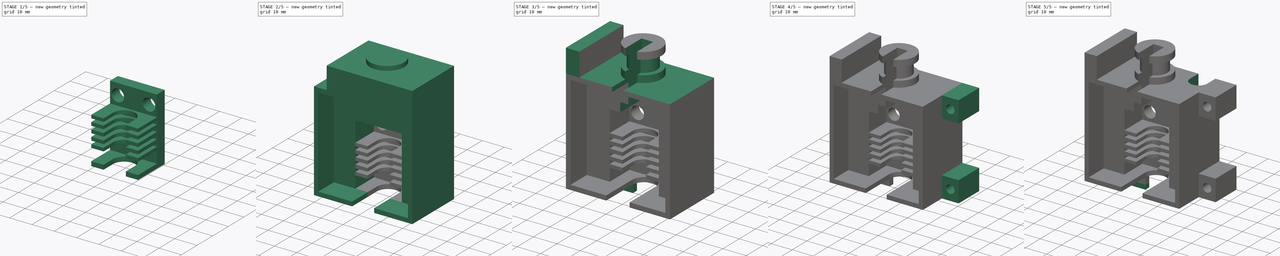
[diagram: build sequence overview — one tinted view per stage of 5, left to right]
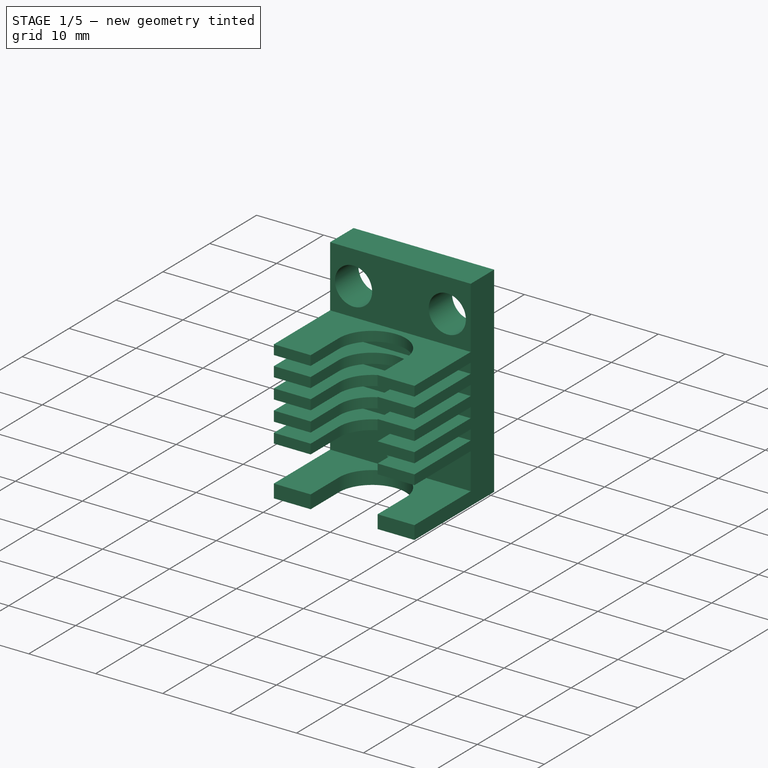
[diagram: stage 1 of 5 — iso view after this stage's code; geometry added in this stage tinted green]
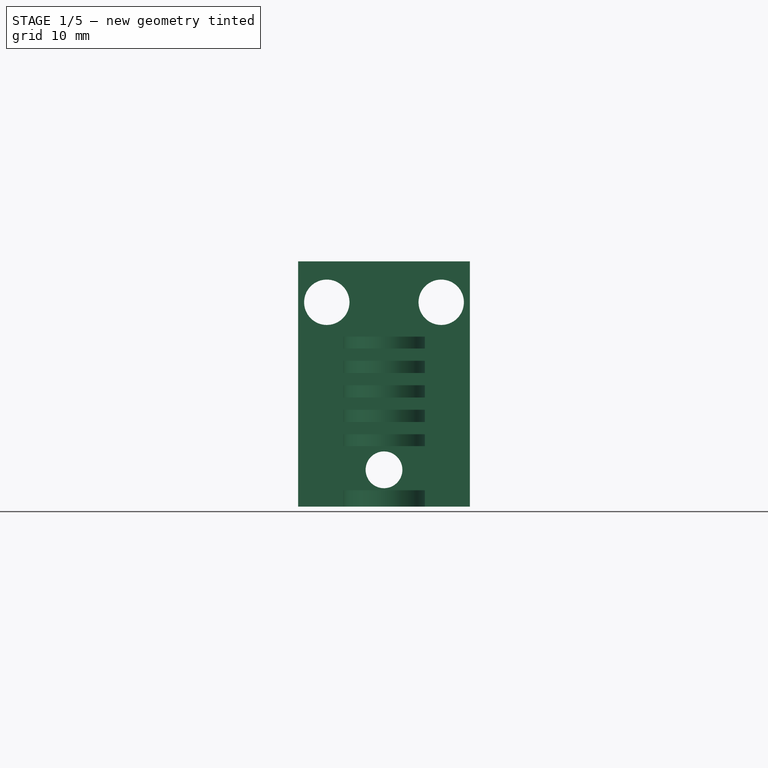
[diagram: stage 1 of 5 — front view after this stage's code; geometry added in this stage tinted green]
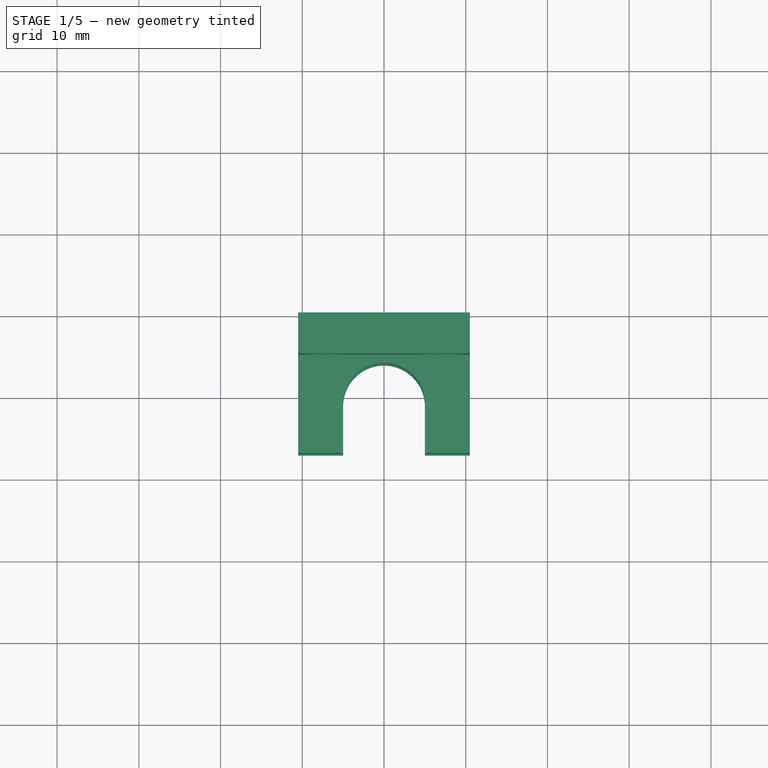
[diagram: stage 1 of 5 — top view after this stage's code; geometry added in this stage tinted green]
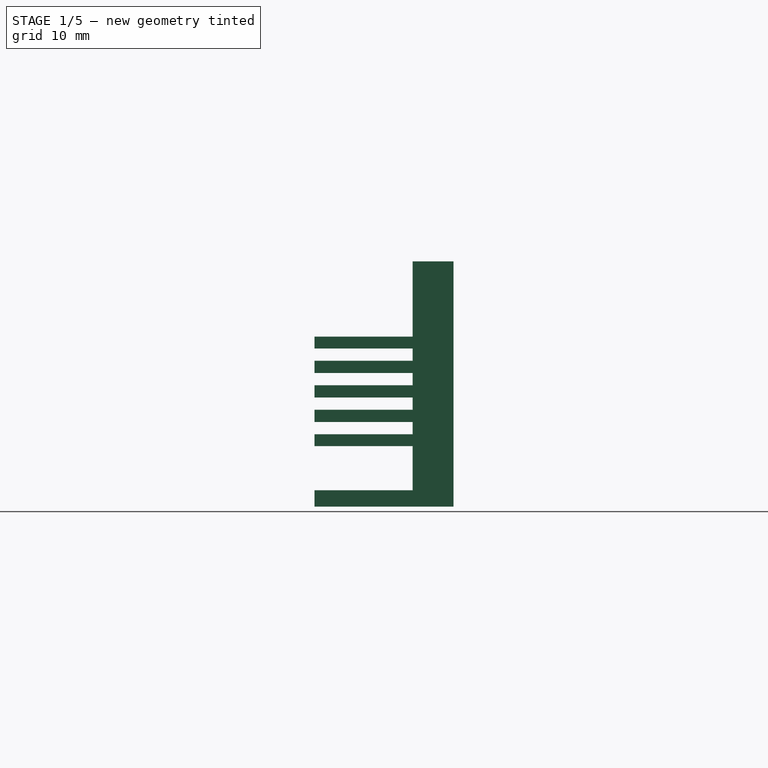
[diagram: stage 1 of 5 — right view after this stage's code; geometry added in this stage tinted green]
FCSTD DOCUMENT  (FreeCAD 2023.521R14555 (Git shallow))
Label: Base
License: All rights reserved
LicenseURL: http://en.wikipedia.org/wiki/All_rights_reserved
objects: Sketcher::SketchObject×17, PartDesign::Pad×8, PartDesign::Pocket×8, PartDesign::Fillet×3, PartDesign::Plane×1, PartDesign::Revolution×1, PartDesign::Body×1, App::Part×1
note: 96 computed .brp shape members not serialized (recipe doc carries the construction recipe); baked Part::Feature solids carry a one-line shape summary decoded from their .brp

FEATURE [Sketcher::SketchObject] Sketch
  ArcFitTolerance = 0
  AttachmentSupport = -> [XZ_Plane]
  ExternalBSplineMaxDegree = 0
  ExternalBSplineTolerance = 0
  FullyConstrained = true
  InternalTolerance = 1e-06
  InvalidShape = false
  MakeInternals = false
  MapMode = 5
  Placement = pos=(0,0,0) rot=(1,0,0;1.5708rad)
  Support = -> [XZ_Plane]
  TreeRank = 0
  ValidateShape = false
  sketch-geometry (10):
    g0: LineSegment StartX=-10.5 StartY=0 StartZ=0 EndX=-10.5 EndY=30 EndZ=0
    g1: LineSegment StartX=-10.5 StartY=30 StartZ=0 EndX=10.5 EndY=30 EndZ=0
    g2: LineSegment StartX=10.5 StartY=30 StartZ=0 EndX=10.5 EndY=0 EndZ=0
    g3: LineSegment StartX=10.5 StartY=0 StartZ=0 EndX=-10.5 EndY=0 EndZ=0
    g4: GeomPoint [constr] X=2e-16 Y=15 Z=0
    g5: Circle CenterX=-7 CenterY=25 CenterZ=0 NormalX=0 NormalY=0 NormalZ=1 AngleXU=0 Radius=2.775
    g6: Circle CenterX=7 CenterY=25 CenterZ=0 NormalX=0 NormalY=0 NormalZ=1 AngleXU=0 Radius=2.775
    g7: Circle CenterX=0 CenterY=4.5 CenterZ=0 NormalX=0 NormalY=0 NormalZ=1 AngleXU=0 Radius=2.25
    g8: LineSegment [constr] StartX=-7 StartY=25 StartZ=0 EndX=7 EndY=25 EndZ=0
    g9: GeomPoint [constr] X=0 Y=25 Z=0
  constraints (24):
    c: Coincident(g0,g1)
    c: Coincident(g1,g2)
    c: Coincident(g2,g3)
    c: Coincident(g3,g0)
    c: Horizontal(g1)
    c: Horizontal(g3)
    c: Vertical(g0)
    c: Vertical(g2)
    c: Symmetric(g1,g0,g4)
    c: Symmetric(g3,g3,g-1)
    c: DistanceX(g3,g3) = 21
    c: DistanceY(g0,g0) = 30
    c: Diameter(g7) = 4.5
    c: Vertical(g7,g-1)
    c: Horizontal(g6,g5)
    c: Equal(g5,g6)
    c: Diameter(g5) = 5.55
    c: Coincident(g8,g5)
    c: Coincident(g8,g6)
    c: Symmetric(g8,g8,g9)
    c: Vertical(g7,g9)
    c: DistanceX(g8,g8) = 14
    c: DistanceY(g-1,g7) = 4.5
    c: DistanceY(g-1,g9) = 25
FEATURE [PartDesign::Pad] Pad
  AddSubType = 0
  AutoTaperInnerAngle = true
  CheckUpToFaceLimits = true
  ClaimChildren = false
  Direction = (0,-1,-2e-16)
  Fit = 0
  FitJoin = 0
  InnerFit = 0
  InnerFitJoin = 0
  InvalidShape = false
  Length = 5
  Length2 = 10
  NewSolid = false
  Profile = -> Sketch
  ReferenceAxis = -> Sketch [N_Axis]
  Suppress = false
  TaperInnerAngle = 0
  TaperInnerAngleRev = 0
  TreeRank = 0
  Type = 0
  ValidateShape = true
  _ProfileBasedVersion = 0
FEATURE [Sketcher::SketchObject] Sketch001
  ArcFitTolerance = 0
  AttachmentSupport = -> [Pad]
  ExternalBSplineMaxDegree = 0
  ExternalBSplineTolerance = 0
  ExternalGeometry = -> [Pad]
  FullyConstrained = true
  InternalTolerance = 1e-06
  InvalidShape = false
  MakeInternals = false
  MapMode = 5
  Placement = pos=(0,-5,-1.1e-15) rot=(1,0,0;1.5708rad)
  Support = -> [Pad]
  TreeRank = 0
  ValidateShape = false
  sketch-geometry (9):
    g0: LineSegment StartX=-10.5 StartY=7.4 StartZ=0 EndX=-10.5 EndY=20.8 EndZ=0
    g1: LineSegment StartX=-10.5 StartY=20.8 StartZ=0 EndX=10.5 EndY=20.8 EndZ=0
    g2: LineSegment StartX=10.5 StartY=20.8 StartZ=0 EndX=10.5 EndY=7.4 EndZ=0
    g3: LineSegment StartX=10.5 StartY=7.4 StartZ=0 EndX=-10.5 EndY=7.4 EndZ=0
    g4: GeomPoint [constr] X=0 Y=14.1 Z=0
    g5: LineSegment StartX=-10.5 StartY=0 StartZ=0 EndX=10.5 EndY=0 EndZ=0
    g6: LineSegment StartX=10.5 StartY=0 StartZ=0 EndX=10.5 EndY=2 EndZ=0
    g7: LineSegment StartX=10.5 StartY=2 StartZ=0 EndX=-10.5 EndY=2 EndZ=0
    g8: LineSegment StartX=-10.5 StartY=2 StartZ=0 EndX=-10.5 EndY=0 EndZ=0
  constraints (24):
    c: Coincident(g0,g1)
    c: Coincident(g1,g2)
    c: Coincident(g2,g3)
    c: Coincident(g3,g0)
    c: Horizontal(g1)
    c: Horizontal(g3)
    c: Vertical(g0)
    c: Vertical(g2)
    c: Symmetric(g1,g0,g4)
    c: Equal(g3,g-3)
    c: Vertical(g4,g-1)
    c: DistanceY(g0,g0) = 13.4
    c: DistanceY(g-3,g0) = 20.8
    c: Coincident(g5,g6)
    c: Coincident(g6,g7)
    c: Coincident(g7,g8)
    c: Coincident(g8,g5)
    c: Horizontal(g5)
    c: Horizontal(g7)
    c: Vertical(g6)
    c: Vertical(g8)
    c: Coincident(g5,g-3)
    c: Vertical(g5,g-3)
    c: DistanceY(g8,g8) = 2
FEATURE [PartDesign::Pad] Pad001
  AddSubType = 0
  AutoTaperInnerAngle = true
  BaseFeature = -> Pad
  CheckUpToFaceLimits = true
  ClaimChildren = false
  Direction = (0,-1,-2e-16)
  Fit = 0
  FitJoin = 0
  InnerFit = 0
  InnerFitJoin = 0
  InvalidShape = false
  Length = 12
  Length2 = 10
  NewSolid = false
  Profile = -> Sketch001
  ReferenceAxis = -> Sketch001 [N_Axis]
  Suppress = false
  TaperInnerAngle = 0
  TaperInnerAngleRev = 0
  TreeRank = 0
  Type = 0
  ValidateShape = true
  _ProfileBasedVersion = 0
FEATURE [Sketcher::SketchObject] Sketch002
  ArcFitTolerance = 0
  AttachmentSupport = -> [Pad001]
  ExternalBSplineMaxDegree = 0
  ExternalBSplineTolerance = 0
  ExternalGeometry = -> [Pad001]
  FullyConstrained = true
  InternalTolerance = 1e-06
  InvalidShape = false
  MakeInternals = false
  MapMode = 5
  Placement = pos=(0,0,0) rot=(1,0,0;3.14159rad)
  Support = -> [Pad001]
  TreeRank = 0
  ValidateShape = false
  sketch-geometry (4):
    g0: ArcOfCircle CenterX=0 CenterY=11 CenterZ=0 NormalX=0 NormalY=0 NormalZ=1 AngleXU=0 Radius=5 StartAngle=3.14159 EndAngle=6.28319
    g1: LineSegment StartX=-5 StartY=11 StartZ=0 EndX=-5 EndY=17 EndZ=0
    g2: LineSegment StartX=5 StartY=11 StartZ=0 EndX=5 EndY=17 EndZ=0
    g3: LineSegment StartX=5 StartY=17 StartZ=0 EndX=-5 EndY=17 EndZ=0
  constraints (13):
    c: PointOnObject(g0,g-2)
    c: Horizontal(g0,g0)
    c: Horizontal(g0,g0)
    c: Coincident(g1,g0)
    c: Coincident(g2,g0)
    c: Horizontal(g-3,g1)
    c: Horizontal(g1,g2)
    c: Vertical(g1)
    c: Vertical(g2)
    c: Coincident(g3,g2)
    c: Coincident(g3,g1)
    c: DistanceX(g3,g3) = 10
    c: DistanceY(g-4,g0) = 6
FEATURE [PartDesign::Pocket] Pocket
  AddSubType = 1
  AutoTaperInnerAngle = true
  BaseFeature = -> Pad001
  CheckUpToFaceLimits = true
  ClaimChildren = false
  Direction = (0,-2e-16,1)
  Fit = 0
  FitJoin = 0
  InnerFit = 0
  InnerFitJoin = 0
  InvalidShape = false
  Length = 5
  Length2 = 5
  NewSolid = false
  Profile = -> Sketch002
  ReferenceAxis = -> Sketch002 [N_Axis]
  Suppress = false
  TaperInnerAngle = 0
  TaperInnerAngleRev = 0
  TreeRank = 0
  Type = 1
  ValidateShape = true
  _ProfileBasedVersion = 0
  _Version = 0
FEATURE [Sketcher::SketchObject] Sketch003
  ArcFitTolerance = 0
  AttachmentSupport = -> [Pocket]
  ExternalBSplineMaxDegree = 0
  ExternalBSplineTolerance = 0
  ExternalGeometry = -> [Pocket]
  FullyConstrained = true
  InternalTolerance = 1e-06
  InvalidShape = false
  MakeInternals = false
  MapMode = 5
  Placement = pos=(0,-17,-3.8e-15) rot=(1,0,0;1.5708rad)
  Support = -> [Pocket]
  TreeRank = 0
  ValidateShape = false
  sketch-geometry (21):
    g0: LineSegment StartX=-10.5 StartY=19.35 StartZ=0 EndX=10.5 EndY=19.35 EndZ=0
    g1: LineSegment StartX=10.5 StartY=19.35 StartZ=0 EndX=10.5 EndY=17.85 EndZ=0
    g2: LineSegment StartX=10.5 StartY=17.85 StartZ=0 EndX=-10.5 EndY=17.85 EndZ=0
    g3: LineSegment StartX=-10.5 StartY=17.85 StartZ=0 EndX=-10.5 EndY=19.35 EndZ=0
    g4: LineSegment StartX=-10.5 StartY=16.35 StartZ=0 EndX=10.5 EndY=16.35 EndZ=0
    g5: LineSegment StartX=10.5 StartY=16.35 StartZ=0 EndX=10.5 EndY=14.85 EndZ=0
    g6: LineSegment StartX=10.5 StartY=14.85 StartZ=0 EndX=-10.5 EndY=14.85 EndZ=0
    g7: LineSegment StartX=-10.5 StartY=14.85 StartZ=0 EndX=-10.5 EndY=16.35 EndZ=0
    g8: LineSegment StartX=-10.5 StartY=13.35 StartZ=0 EndX=10.5 EndY=13.35 EndZ=0
    g9: LineSegment StartX=10.5 StartY=13.35 StartZ=0 EndX=10.5 EndY=11.85 EndZ=0
    g10: LineSegment StartX=10.5 StartY=11.85 StartZ=0 EndX=-10.5 EndY=11.85 EndZ=0
    g11: LineSegment StartX=-10.5 StartY=11.85 StartZ=0 EndX=-10.5 EndY=13.35 EndZ=0
    g12: LineSegment StartX=-10.5 StartY=10.35 StartZ=0 EndX=10.5 EndY=10.35 EndZ=0
    g13: LineSegment StartX=10.5 StartY=10.35 StartZ=0 EndX=10.5 EndY=8.85 EndZ=0
    g14: LineSegment StartX=10.5 StartY=8.85 StartZ=0 EndX=-10.5 EndY=8.85 EndZ=0
    g15: LineSegment StartX=-10.5 StartY=8.85 StartZ=0 EndX=-10.5 EndY=10.35 EndZ=0
    g16: LineSegment [constr] StartX=-10.5 StartY=7.4 StartZ=0 EndX=-10.5 EndY=8.85 EndZ=0
    g17: LineSegment [constr] StartX=-10.5 StartY=10.35 StartZ=0 EndX=-10.5 EndY=11.85 EndZ=0
    g18: LineSegment [constr] StartX=-10.5 StartY=13.35 StartZ=0 EndX=-10.5 EndY=14.85 EndZ=0
    g19: LineSegment [constr] StartX=-10.5 StartY=16.35 StartZ=0 EndX=-10.5 EndY=17.85 EndZ=0
    g20: LineSegment [constr] StartX=-10.5 StartY=19.35 StartZ=0 EndX=-10.5 EndY=20.8 EndZ=0
  constraints (58):
    c: Coincident(g0,g1)
    c: Coincident(g1,g2)
    c: Coincident(g2,g3)
    c: Coincident(g3,g0)
    c: Horizontal(g0)
    c: Horizontal(g2)
    c: Vertical(g1)
    c: Vertical(g3)
    c: Vertical(g0,g-3)
    c: Vertical(g0,g-3)
    c: Coincident(g4,g5)
    c: Coincident(g5,g6)
    c: Coincident(g6,g7)
    c: Coincident(g7,g4)
    c: Horizontal(g4)
    c: Horizontal(g6)
    c: Vertical(g5)
    c: Vertical(g7)
    c: DistanceY(g4,g0) = 3
    c: Vertical(g4,g-3)
    c: Vertical(g4,g-3)
    c: Coincident(g8,g9)
    c: Coincident(g9,g10)
    c: Coincident(g10,g11)
    c: Coincident(g11,g8)
    c: Horizontal(g8)
    c: Horizontal(g10)
    c: Vertical(g9)
    c: Vertical(g11)
    c: Coincident(g12,g13)
    c: Coincident(g13,g14)
    c: Coincident(g14,g15)
    c: Coincident(g15,g12)
    c: Horizontal(g12)
    c: Horizontal(g14)
    c: Vertical(g13)
    c: Vertical(g15)
    c: Vertical(g12,g8)
    c: Vertical(g8,g-3)
    c: Vertical(g12,g8)
    c: Vertical(g8,g-3)
    c: DistanceY(g8,g4) = 3
    c: DistanceY(g12,g8) = 3
    c: Equal(g3,g7)
    c: Equal(g7,g11)
    c: Equal(g11,g15)
    c: Coincident(g16,g-5)
    c: Coincident(g16,g14)
    c: Coincident(g17,g12)
    c: Coincident(g18,g8)
    c: Coincident(g18,g6)
    c: Coincident(g19,g4)
    c: Coincident(g2,g19)
    c: Coincident(g20,g0)
    c: Coincident(g20,g-4)
    c: Coincident(g17,g10)
    c: DistanceY(g3,g3) = 1.5
    c: Equal(g20,g16)
FEATURE [PartDesign::Pocket] Pocket001
  AddSubType = 1
  AutoTaperInnerAngle = true
  BaseFeature = -> Pocket
  CheckUpToFaceLimits = true
  ClaimChildren = false
  Direction = (0,1,2e-16)
  Fit = 0
  FitJoin = 0
  InnerFit = 0
  InnerFitJoin = 0
  InvalidShape = false
  Length = 0
  Length2 = 5
  NewSolid = false
  Profile = -> Sketch003
  ReferenceAxis = -> Sketch003 [N_Axis]
  Suppress = false
  TaperInnerAngle = 0
  TaperInnerAngleRev = 0
  TreeRank = 0
  Type = 3
  UpToFace = -> Pocket [Face8]
  ValidateShape = true
  _ProfileBasedVersion = 0
  _Version = 0
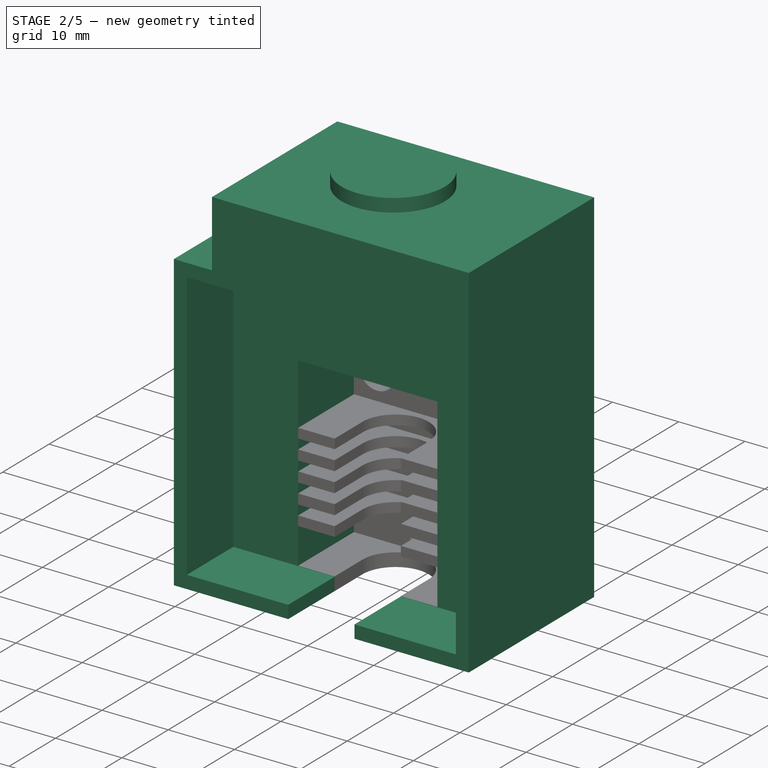
[diagram: stage 2 of 5 — iso view after this stage's code; geometry added in this stage tinted green]
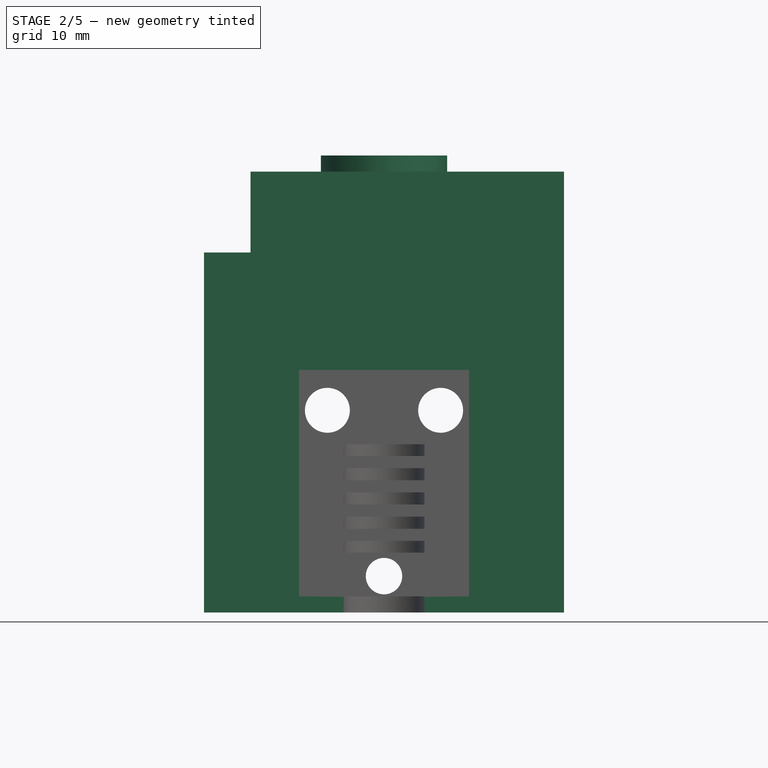
[diagram: stage 2 of 5 — front view after this stage's code; geometry added in this stage tinted green]
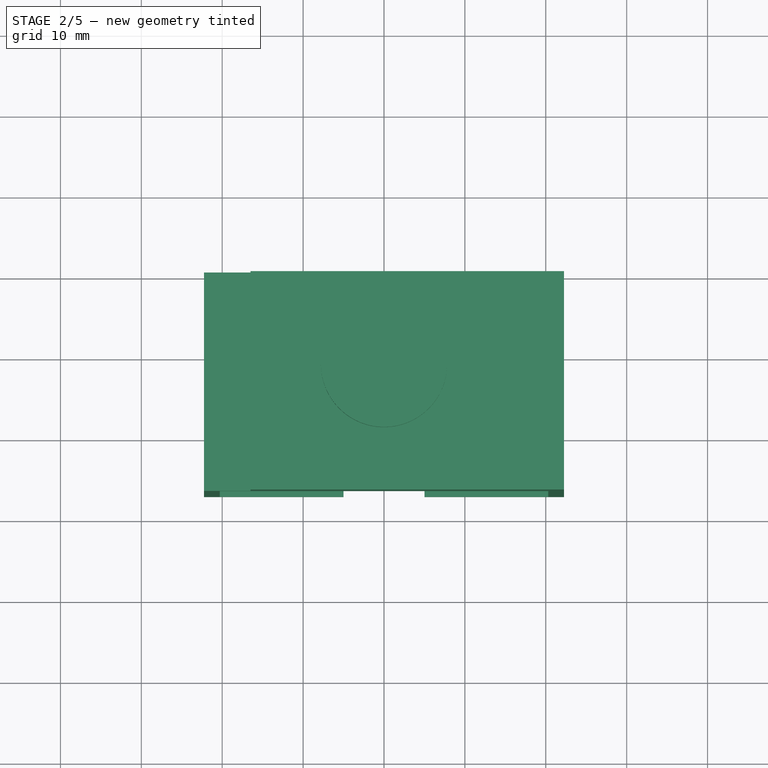
[diagram: stage 2 of 5 — top view after this stage's code; geometry added in this stage tinted green]
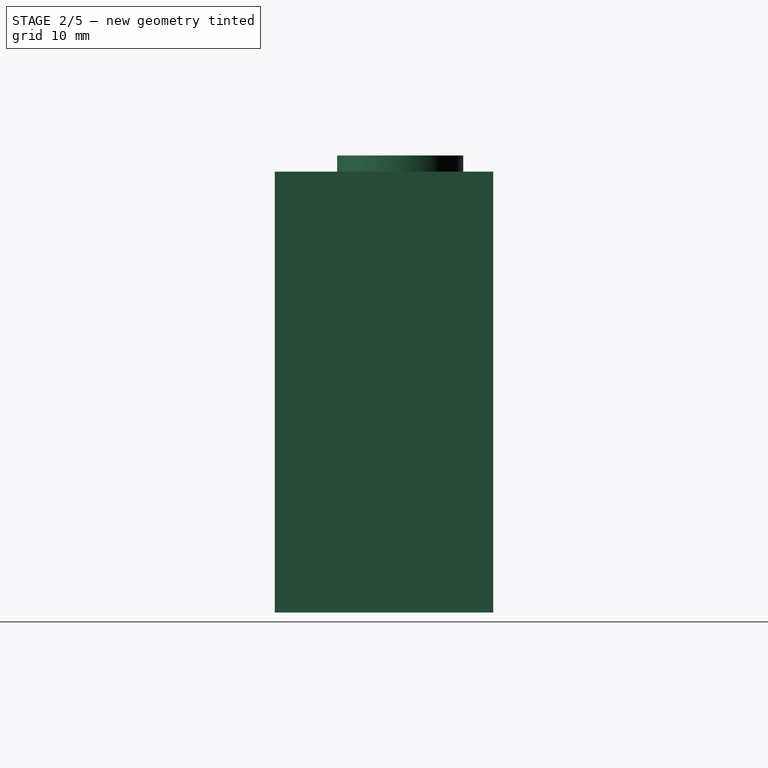
[diagram: stage 2 of 5 — right view after this stage's code; geometry added in this stage tinted green]
FEATURE [Sketcher::SketchObject] Sketch004
  ArcFitTolerance = 0
  AttachmentSupport = -> [Pocket001]
  ExternalBSplineMaxDegree = 0
  ExternalBSplineTolerance = 0
  ExternalGeometry = -> [Pocket001]
  FullyConstrained = true
  InternalTolerance = 1e-06
  InvalidShape = false
  MakeInternals = false
  MapMode = 5
  Placement = pos=(0,0,0) rot=(0,0.707107,0.707107;3.14159rad)
  Support = -> [Pocket001]
  TreeRank = 0
  ValidateShape = false
  sketch-geometry (14):
    g0: LineSegment StartX=-22.25 StartY=0 StartZ=0 EndX=-22.25 EndY=44.5 EndZ=0
    g1: LineSegment StartX=22.25 StartY=0 StartZ=0 EndX=22.25 EndY=44.5 EndZ=0
    g2: LineSegment StartX=-22.25 StartY=44.5 StartZ=0 EndX=22.25 EndY=44.5 EndZ=0
    g3: LineSegment StartX=-5 StartY=2 StartZ=0 EndX=-10.5 EndY=2 EndZ=0
    g4: LineSegment StartX=10.5 StartY=0 StartZ=0 EndX=5 EndY=0 EndZ=0
    g5: LineSegment StartX=5 StartY=2 StartZ=0 EndX=10.5 EndY=2 EndZ=0
    g6: LineSegment StartX=5 StartY=0 StartZ=0 EndX=5 EndY=2 EndZ=0
    g7: LineSegment StartX=10.5 StartY=2 StartZ=0 EndX=10.5 EndY=30 EndZ=0
    g8: LineSegment StartX=-10.5 StartY=0 StartZ=0 EndX=-5 EndY=0 EndZ=0
    g9: LineSegment StartX=-5 StartY=0 StartZ=0 EndX=-5 EndY=2 EndZ=0
    g10: LineSegment StartX=-10.5 StartY=30 StartZ=0 EndX=10.5 EndY=30 EndZ=0
    g11: LineSegment StartX=-10.5 StartY=30 StartZ=0 EndX=-10.5 EndY=2 EndZ=0
    g12: LineSegment StartX=-10.5 StartY=0 StartZ=0 EndX=-22.25 EndY=0 EndZ=0
    g13: LineSegment StartX=10.5 StartY=0 StartZ=0 EndX=22.25 EndY=0 EndZ=0
  constraints (31):
    c: DistanceX(g0,g1) = 44.5
    c: Symmetric(g0,g1,g-1)
    c: Horizontal(g0,g-1)
    c: Vertical(g0)
    c: Vertical(g1)
    c: Horizontal(g0,g1)
    c: Coincident(g2,g0)
    c: Coincident(g2,g1)
    c: Coincident(g3,g-9)
    c: Coincident(g4,g-8)
    c: Coincident(g5,g-8)
    c: Coincident(g5,g-7)
    c: Coincident(g6,g4)
    c: Coincident(g6,g5)
    c: Coincident(g7,g5)
    c: Coincident(g8,g-9)
    c: Coincident(g9,g8)
    c: Coincident(g9,g3)
    c: Coincident(g3,g-7)
    c: DistanceY(g1,g1) = 44.5
    c: Coincident(g10,g-6)
    c: Coincident(g10,g7)
    c: Coincident(g7,g-6)
    c: Coincident(g11,g10)
    c: Coincident(g11,g3)
    c: Coincident(g12,g0)
    c: Coincident(g4,g13)
    c: Coincident(g4,g-4)
    c: Coincident(g8,g12)
    c: Coincident(g8,g-5)
    c: Coincident(g1,g13)
FEATURE [PartDesign::Pad] Pad002
  AddSubType = 0
  AlongSketchNormal = false
  AutoTaperInnerAngle = true
  BaseFeature = -> Pocket001
  CheckUpToFaceLimits = true
  ClaimChildren = false
  Direction = (0,1,2e-16)
  Fit = 0
  FitJoin = 0
  InnerFit = 0
  InnerFitJoin = 0
  InvalidShape = false
  Length = 10
  Length2 = 10
  NewSolid = false
  Offset = 10
  Profile = -> Sketch004
  ReferenceAxis = -> Sketch004 [N_Axis]
  Suppress = false
  TaperInnerAngle = 0
  TaperInnerAngleRev = 0
  TreeRank = 0
  Type = 3
  UpToFace = -> Pocket001 [Face68]
  ValidateShape = true
  _ProfileBasedVersion = 0
FEATURE [Sketcher::SketchObject] Sketch005
  ArcFitTolerance = 0
  AttachmentSupport = -> [Pad002]
  ExternalBSplineMaxDegree = 0
  ExternalBSplineTolerance = 0
  ExternalGeometry = -> [Pad002]
  FullyConstrained = true
  InternalTolerance = 1e-06
  InvalidShape = false
  MakeInternals = false
  MapMode = 5
  Placement = pos=(0,-27,-6e-15) rot=(1,0,0;1.5708rad)
  Support = -> [Pad002]
  TreeRank = 0
  ValidateShape = false
  sketch-geometry (6):
    g0: LineSegment StartX=-20.3 StartY=1.95 StartZ=0 EndX=-20.3 EndY=42.55 EndZ=0
    g1: LineSegment StartX=-20.3 StartY=42.55 StartZ=0 EndX=20.3 EndY=42.55 EndZ=0
    g2: LineSegment StartX=20.3 StartY=42.55 StartZ=0 EndX=20.3 EndY=1.95 EndZ=0
    g3: LineSegment StartX=20.3 StartY=1.95 StartZ=0 EndX=-20.3 EndY=1.95 EndZ=0
    g4: GeomPoint [constr] X=0 Y=22.25 Z=0
    g5: GeomPoint [constr] X=22.25 Y=22.25 Z=0
  constraints (14):
    c: Coincident(g0,g1)
    c: Coincident(g1,g2)
    c: Coincident(g2,g3)
    c: Coincident(g3,g0)
    c: Horizontal(g1)
    c: Horizontal(g3)
    c: Vertical(g0)
    c: Vertical(g2)
    c: Symmetric(g1,g0,g4)
    c: DistanceY(g2,g2) = 40.6
    c: Equal(g2,g3)
    c: Vertical(g4,g-1)
    c: Symmetric(g-3,g-3,g5)
    c: Horizontal(g5,g4)
FEATURE [PartDesign::Pocket] Pocket002
  AddSubType = 1
  AlongSketchNormal = false
  AutoTaperInnerAngle = true
  BaseFeature = -> Pad002
  CheckUpToFaceLimits = true
  ClaimChildren = false
  Direction = (0,1,2e-16)
  Fit = 0
  FitJoin = 0
  InnerFit = 0
  InnerFitJoin = 0
  InvalidShape = false
  Length = 0
  Length2 = 5
  NewSolid = false
  Profile = -> Sketch005
  ReferenceAxis = -> Sketch005 [N_Axis]
  Suppress = false
  TaperInnerAngle = 0
  TaperInnerAngleRev = 0
  TreeRank = 0
  Type = 3
  UpToFace = -> Pad002 [Face55]
  ValidateShape = true
  _ProfileBasedVersion = 0
  _Version = 0
FEATURE [PartDesign::Plane] DatumPlane
  AttachmentOffset = pos=(0,0,6.5) rot=(0,0,1;0rad)
  AttachmentSupport = -> [Pocket002]
  InvalidShape = false
  Length = 44.5
  MapMode = 5
  MinimumLength = 10
  MinimumWidth = 10
  Placement = pos=(0,-11.5,-2.6e-15) rot=(1,0,0;1.5708rad)
  ResizeMode = 0
  Support = -> [Pocket002]
  TreeRank = 0
  ValidateShape = false
  Width = 44.5
FEATURE [Sketcher::SketchObject] Sketch006
  ArcFitTolerance = 0
  AttachmentSupport = -> [DatumPlane]
  ExternalBSplineMaxDegree = 0
  ExternalBSplineTolerance = 0
  ExternalGeometry = -> [Pocket002]
  FullyConstrained = true
  InternalTolerance = 1e-06
  InvalidShape = false
  MakeInternals = false
  MapMode = 5
  Placement = pos=(0,-11.5,-2.6e-15) rot=(1,0,0;1.5708rad)
  Support = -> [DatumPlane]
  TreeRank = 0
  ValidateShape = false
  sketch-geometry (8):
    g0: LineSegment StartX=-7.8 StartY=44.5 StartZ=0 EndX=-7.8 EndY=47.5 EndZ=0
    g1: LineSegment StartX=-7.8 StartY=47.5 StartZ=0 EndX=-5.8 EndY=47.5 EndZ=0
    g2: LineSegment StartX=-5.8 StartY=47.5 StartZ=0 EndX=-5.8 EndY=53.5 EndZ=0
    g3: LineSegment StartX=-5.8 StartY=53.5 StartZ=0 EndX=-7.8 EndY=53.5 EndZ=0
    g4: LineSegment StartX=-7.8 StartY=53.5 StartZ=0 EndX=-7.8 EndY=56.5 EndZ=0
    g5: LineSegment StartX=-7.8 StartY=56.5 StartZ=0 EndX=0 EndY=56.5 EndZ=0
    g6: LineSegment StartX=0 StartY=56.5 StartZ=0 EndX=0 EndY=44.5 EndZ=0
    g7: LineSegment StartX=0 StartY=44.5 StartZ=0 EndX=-7.8 EndY=44.5 EndZ=0
  constraints (24):
    c: DistanceX(g0,g-1) = 7.8
    c: Vertical(g0)
    c: Horizontal(g0,g-3)
    c: Coincident(g1,g0)
    c: Horizontal(g1)
    c: Coincident(g2,g1)
    c: Vertical(g2)
    c: Coincident(g3,g2)
    c: Horizontal(g3)
    c: Coincident(g4,g3)
    c: Vertical(g4)
    c: Coincident(g5,g4)
    c: Horizontal(g5)
    c: Vertical(g3,g0)
    c: PointOnObject(g5,g-2)
    c: DistanceX(g1,g-1) = 5.8
    c: DistanceY(g0,g0) = 3
    c: DistanceY(g4,g4) = 3
    c: DistanceY(g0,g4) = 12
    c: Coincident(g6,g5)
    c: Coincident(g7,g6)
    c: Coincident(g7,g0)
    c: Horizontal(g7)
    c: Vertical(g6)
FEATURE [PartDesign::Revolution] Revolution
  AddSubType = 0
  Angle = 360
  Axis = (0,-2e-16,1)
  Base = (0,-11.5,-2.6e-15)
  BaseFeature = -> Pocket002
  ClaimChildren = false
  Fit = 0
  FitJoin = 0
  InnerFit = 0
  InnerFitJoin = 0
  InvalidShape = false
  NewSolid = false
  Profile = -> Sketch006
  ReferenceAxis = -> Sketch006 [V_Axis]
  Suppress = false
  TreeRank = 0
  ValidateShape = true
  _ProfileBasedVersion = 0
FEATURE [Sketcher::SketchObject] Sketch007
  ArcFitTolerance = 0
  AttachmentSupport = -> [Revolution]
  ExternalBSplineMaxDegree = 0
  ExternalBSplineTolerance = 0
  ExternalGeometry = -> [Revolution]
  FullyConstrained = true
  InternalTolerance = 1e-06
  InvalidShape = false
  MakeInternals = false
  MapMode = 5
  Placement = pos=(0,-27,-6e-15) rot=(1,0,0;1.5708rad)
  Support = -> [Revolution]
  TreeRank = 0
  ValidateShape = false
  sketch-geometry (4):
    g0: LineSegment StartX=-16.5 StartY=44.5 StartZ=0 EndX=-16.5 EndY=54.5 EndZ=0
    g1: LineSegment StartX=-16.5 StartY=54.5 StartZ=0 EndX=22.25 EndY=54.5 EndZ=0
    g2: LineSegment StartX=22.25 StartY=54.5 StartZ=0 EndX=22.25 EndY=44.5 EndZ=0
    g3: LineSegment StartX=22.25 StartY=44.5 StartZ=0 EndX=-16.5 EndY=44.5 EndZ=0
  constraints (11):
    c: Coincident(g1,g0)
    c: Coincident(g2,g1)
    c: Coincident(g3,g2)
    c: Coincident(g3,g0)
    c: Coincident(g2,g-3)
    c: Horizontal(g3)
    c: Horizontal(g1)
    c: DistanceX(g0,g-1) = 16.5
    c: Vertical(g0)
    c: Vertical(g2)
    c: DistanceY(g0,g0) = 10
FEATURE [PartDesign::Pad] Pad003
  AddSubType = 0
  AutoTaperInnerAngle = true
  BaseFeature = -> Revolution
  CheckUpToFaceLimits = true
  ClaimChildren = false
  Direction = (0,-1,-2e-16)
  Fit = 0
  FitJoin = 0
  InnerFit = 0
  InnerFitJoin = 0
  InvalidShape = false
  Length = 10
  Length2 = 10
  NewSolid = false
  Profile = -> Sketch007
  ReferenceAxis = -> Sketch007 [N_Axis]
  Suppress = false
  TaperInnerAngle = 0
  TaperInnerAngleRev = 0
  TreeRank = 0
  Type = 3
  UpToFace = -> Revolution [Face4]
  ValidateShape = true
  _ProfileBasedVersion = 0
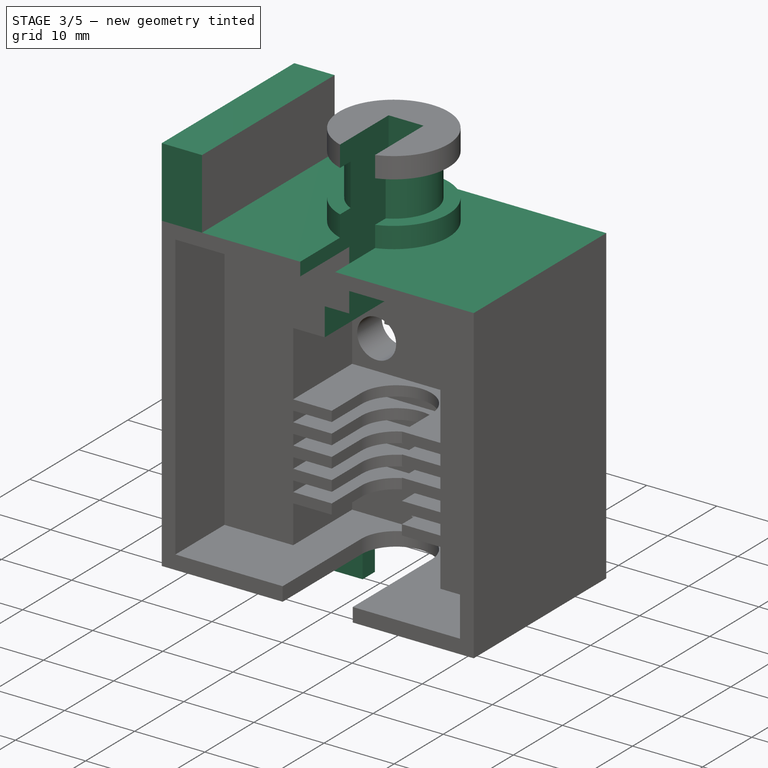
[diagram: stage 3 of 5 — iso view after this stage's code; geometry added in this stage tinted green]
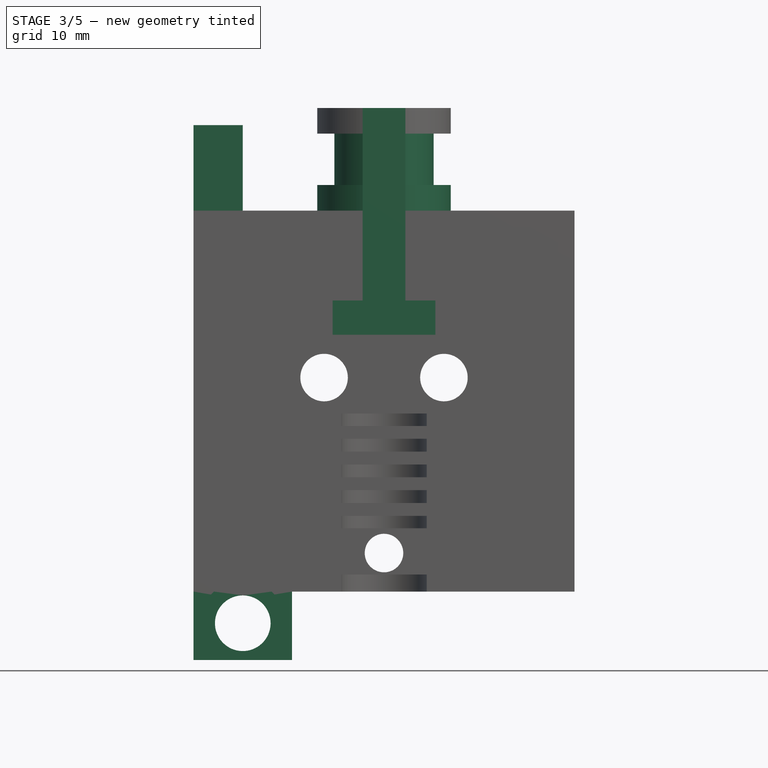
[diagram: stage 3 of 5 — front view after this stage's code; geometry added in this stage tinted green]
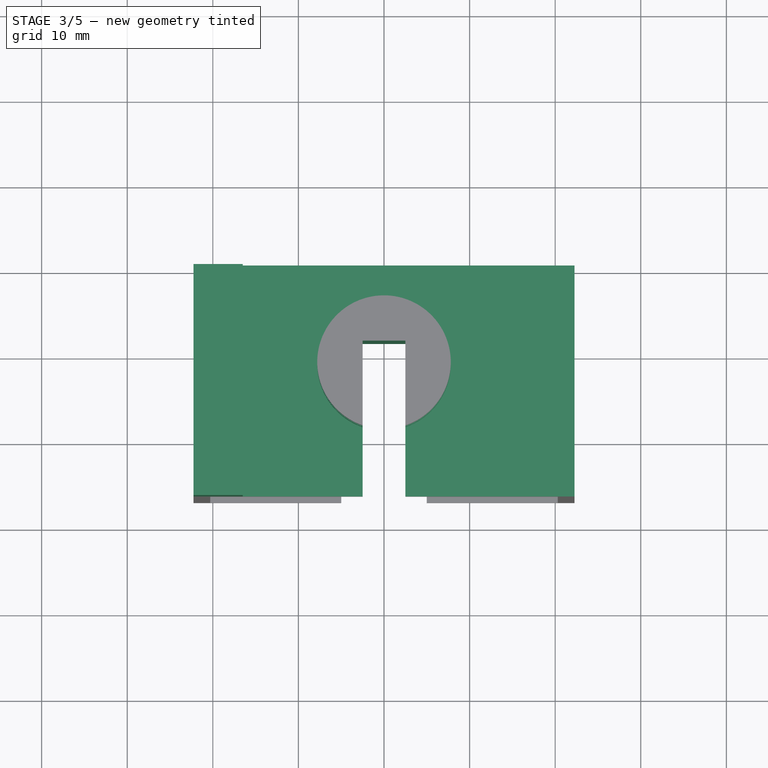
[diagram: stage 3 of 5 — top view after this stage's code; geometry added in this stage tinted green]
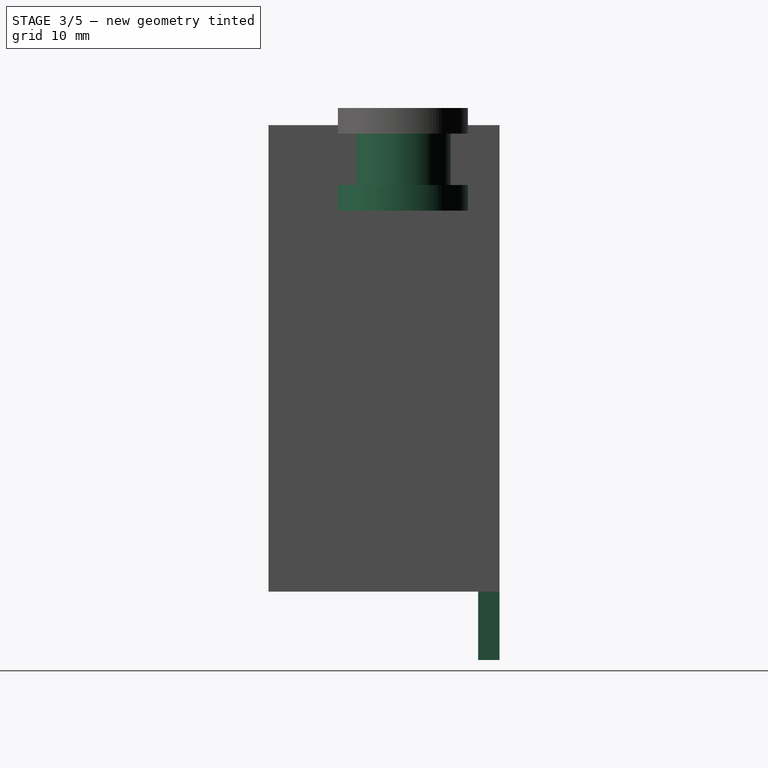
[diagram: stage 3 of 5 — right view after this stage's code; geometry added in this stage tinted green]
FEATURE [Sketcher::SketchObject] Sketch008
  ArcFitTolerance = 0
  AttachmentSupport = -> [Pad003]
  ExternalBSplineMaxDegree = 0
  ExternalBSplineTolerance = 0
  ExternalGeometry = -> [Pad003]
  FullyConstrained = false
  InternalTolerance = 1e-06
  InvalidShape = false
  MakeInternals = false
  MapMode = 5
  Placement = pos=(0,-27,-6e-15) rot=(1,0,0;1.5708rad)
  Support = -> [Pad003]
  TreeRank = 0
  ValidateShape = false
  sketch-geometry (5):
    g0: LineSegment StartX=-2.5 StartY=30 StartZ=0 EndX=-2.5 EndY=56.5 EndZ=0
    g1: LineSegment StartX=-2.5 StartY=56.5 StartZ=0 EndX=2.5 EndY=56.5 EndZ=0
    g2: LineSegment StartX=2.5 StartY=56.5 StartZ=0 EndX=2.5 EndY=30 EndZ=0
    g3: LineSegment StartX=2.5 StartY=30 StartZ=0 EndX=-2.5 EndY=30 EndZ=0
    g4: GeomPoint [constr] X=0 Y=43.25 Z=0
  constraints (13):
    c: Coincident(g0,g1)
    c: Coincident(g1,g2)
    c: Coincident(g2,g3)
    c: Coincident(g3,g0)
    c: Horizontal(g1)
    c: Horizontal(g3)
    c: Vertical(g0)
    c: Vertical(g2)
    c: Symmetric(g1,g0,g4)
    c: DistanceX(g3,g3) = 5
    c: PointOnObject(g0,g-3)
    c: Vertical(g4,g-1)
    c: Horizontal(g0,g-4)
FEATURE [PartDesign::Pocket] Pocket003
  AddSubType = 1
  AutoTaperInnerAngle = true
  BaseFeature = -> Pad003
  CheckUpToFaceLimits = true
  ClaimChildren = false
  Direction = (0,1,-2e-16)
  Fit = 0
  FitJoin = 0
  InnerFit = 0
  InnerFitJoin = 0
  InvalidShape = false
  Length = 0
  Length2 = 5
  NewSolid = false
  Offset = 2.5
  Placement = pos=(0,0,0) rot=(1,0,0;1.5708rad)
  Profile = -> Sketch008
  ReferenceAxis = -> Sketch008 [N_Axis]
  Suppress = false
  TaperInnerAngle = 0
  TaperInnerAngleRev = 0
  TreeRank = 0
  Type = 3
  UpToFace = -> DatumPlane
  ValidateShape = true
  _ProfileBasedVersion = 0
  _Version = 0
FEATURE [Sketcher::SketchObject] Sketch009
  ArcFitTolerance = 0
  AttachmentSupport = -> [Pocket003]
  ExternalBSplineMaxDegree = 0
  ExternalBSplineTolerance = 0
  ExternalGeometry = -> [Pocket003]
  FullyConstrained = true
  InternalTolerance = 1e-06
  InvalidShape = false
  MakeInternals = false
  MapMode = 5
  Placement = pos=(0,0,0) rot=(-1,0,0;1.5708rad)
  Support = -> [Pocket003]
  TreeRank = 0
  ValidateShape = false
  sketch-geometry (6):
    g0: Circle CenterX=-16.5 CenterY=3.7 CenterZ=0 NormalX=0 NormalY=0 NormalZ=1 AngleXU=0 Radius=3.25
    g1: LineSegment StartX=-10.75 StartY=0 StartZ=0 EndX=-10.75 EndY=8 EndZ=0
    g2: LineSegment StartX=-10.75 StartY=8 StartZ=0 EndX=-22.25 EndY=8 EndZ=0
    g3: LineSegment StartX=-22.25 StartY=8 StartZ=0 EndX=-22.25 EndY=0 EndZ=0
    g4: LineSegment StartX=-10.75 StartY=0 StartZ=0 EndX=-22.25 EndY=0 EndZ=0
    g5: GeomPoint [constr] X=-16.5 Y=8 Z=0
  constraints (15):
    c: DistanceY(g-1,g0) = 3.7
    c: Diameter(g0) = 6.5
    c: Vertical(g1)
    c: Coincident(g2,g1)
    c: Coincident(g3,g2)
    c: Vertical(g3)
    c: Horizontal(g2)
    c: DistanceY(g3,g3) = 8
    c: Coincident(g4,g1)
    c: Coincident(g4,g3)
    c: Horizontal(g4)
    c: Symmetric(g2,g2,g5)
    c: Vertical(g5,g0)
    c: DistanceX(g0,g-3) = 6
    c: Coincident(g3,g-4)
FEATURE [PartDesign::Pad] Pad004
  AddSubType = 0
  AutoTaperInnerAngle = true
  BaseFeature = -> Pocket003
  CheckUpToFaceLimits = true
  ClaimChildren = false
  Direction = (0,1,-2e-16)
  Fit = 0
  FitJoin = 0
  InnerFit = 0
  InnerFitJoin = 0
  InvalidShape = false
  Length = 2.5
  Length2 = 10
  NewSolid = false
  Placement = pos=(0,0,0) rot=(1,0,0;1.5708rad)
  Profile = -> Sketch009
  ReferenceAxis = -> Sketch009 [N_Axis]
  Reversed = true
  Suppress = false
  TaperInnerAngle = 0
  TaperInnerAngleRev = 0
  TreeRank = 0
  Type = 0
  ValidateShape = true
  _ProfileBasedVersion = 0
FEATURE [Sketcher::SketchObject] Sketch012
  ArcFitTolerance = 0
  AttachmentSupport = -> [Pad004]
  ExternalBSplineMaxDegree = 0
  ExternalBSplineTolerance = 0
  ExternalGeometry = -> [Pad004]
  FullyConstrained = true
  InternalTolerance = 1e-06
  InvalidShape = false
  MakeInternals = false
  MapMode = 5
  Placement = pos=(0,-17,0) rot=(1,0,0;1.5708rad)
  Support = -> [Pad004]
  TreeRank = 0
  ValidateShape = false
  sketch-geometry (5):
    g0: LineSegment StartX=-6 StartY=30 StartZ=0 EndX=-6 EndY=34 EndZ=0
    g1: LineSegment StartX=-6 StartY=34 StartZ=0 EndX=6 EndY=34 EndZ=0
    g2: LineSegment StartX=6 StartY=34 StartZ=0 EndX=6 EndY=30 EndZ=0
    g3: LineSegment StartX=6 StartY=30 StartZ=0 EndX=-6 EndY=30 EndZ=0
    g4: GeomPoint [constr] X=0 Y=32 Z=0
  constraints (13):
    c: Coincident(g0,g1)
    c: Coincident(g1,g2)
    c: Coincident(g2,g3)
    c: Coincident(g3,g0)
    c: Horizontal(g1)
    c: Vertical(g0)
    c: Vertical(g2)
    c: Symmetric(g1,g0,g4)
    c: Vertical(g4,g-1)
    c: DistanceY(g0,g0) = 4
    c: DistanceX(g1,g1) = 12
    c: Horizontal(g3)
    c: PointOnObject(g-3,g3)
FEATURE [PartDesign::Pocket] Pocket006
  AddSubType = 1
  AutoTaperInnerAngle = true
  BaseFeature = -> Pad004
  CheckUpToFaceLimits = true
  ClaimChildren = false
  Direction = (0,1,-4e-16)
  Fit = 0
  FitJoin = 0
  InnerFit = 0
  InnerFitJoin = 0
  InvalidShape = false
  Length = 0
  Length2 = 5
  NewSolid = false
  Placement = pos=(0,0,0) rot=(1,0,0;1.5708rad)
  Profile = -> Sketch012
  ReferenceAxis = -> Sketch012 [N_Axis]
  Suppress = false
  TaperInnerAngle = 0
  TaperInnerAngleRev = 0
  TreeRank = 0
  Type = 3
  UpToFace = -> Pad004 [Face26]
  ValidateShape = true
  _ProfileBasedVersion = 0
  _Version = 0
FEATURE [Sketcher::SketchObject] Sketch013
  ArcFitTolerance = 0
  AttachmentSupport = -> [Pocket006]
  ExternalBSplineMaxDegree = 0
  ExternalBSplineTolerance = 0
  ExternalGeometry = -> [Pocket006]
  FullyConstrained = true
  InternalTolerance = 1e-06
  InvalidShape = false
  MakeInternals = false
  MapMode = 5
  Placement = pos=(0,-2.5,5e-16) rot=(1,0,0;1.5708rad)
  Support = -> [Pocket006]
  TreeRank = 0
  ValidateShape = false
  sketch-geometry (1):
    g0: Circle CenterX=-16.5 CenterY=-3.7 CenterZ=0 NormalX=0 NormalY=0 NormalZ=1 AngleXU=0 Radius=5
  constraints (2):
    c: Diameter(g0) = 10
    c: Coincident(g0,g-4)
FEATURE [PartDesign::Pocket] Pocket007
  AddSubType = 1
  AutoTaperInnerAngle = true
  BaseFeature = -> Pocket006
  CheckUpToFaceLimits = true
  ClaimChildren = false
  Direction = (0,1,-2e-16)
  Fit = 0
  FitJoin = 0
  InnerFit = 0
  InnerFitJoin = 0
  InvalidShape = false
  Length = 12
  Length2 = 5
  NewSolid = false
  Placement = pos=(0,0,0) rot=(1,0,0;1.5708rad)
  Profile = -> Sketch013
  ReferenceAxis = -> Sketch013 [N_Axis]
  Reversed = true
  Suppress = false
  TaperInnerAngle = 0
  TaperInnerAngleRev = 0
  TreeRank = 0
  Type = 0
  ValidateShape = true
  _ProfileBasedVersion = 0
  _Version = 0
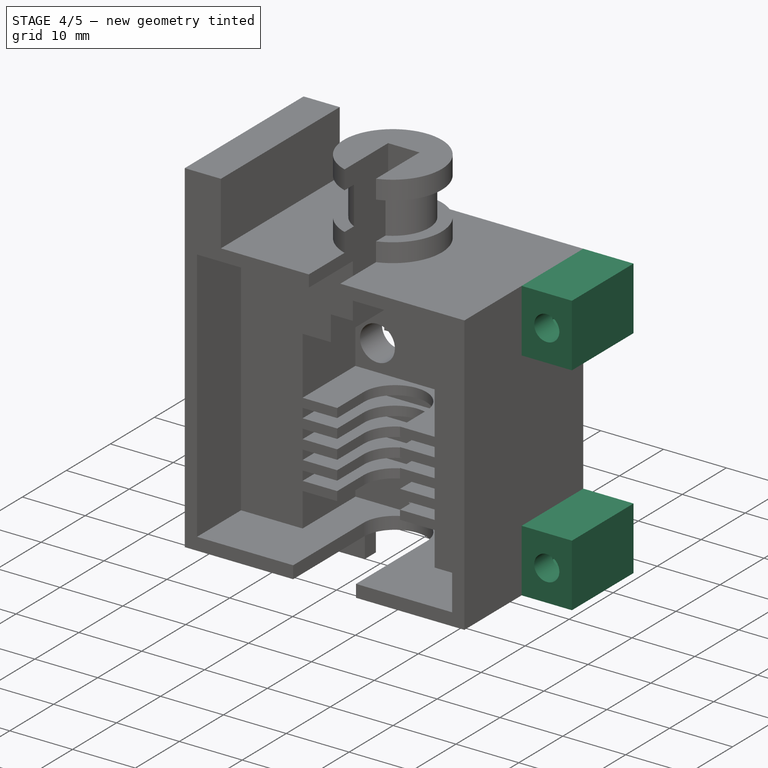
[diagram: stage 4 of 5 — iso view after this stage's code; geometry added in this stage tinted green]
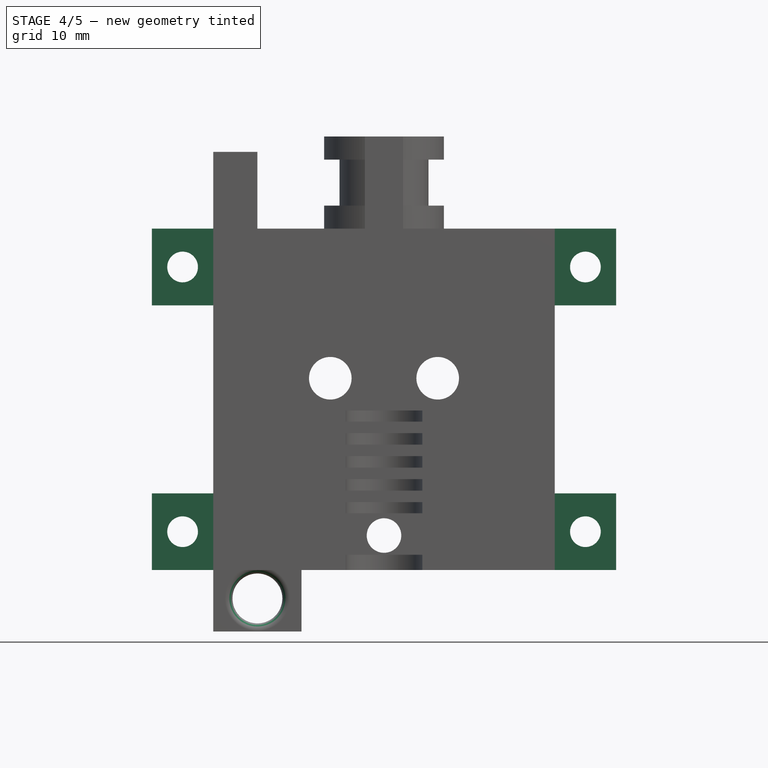
[diagram: stage 4 of 5 — front view after this stage's code; geometry added in this stage tinted green]
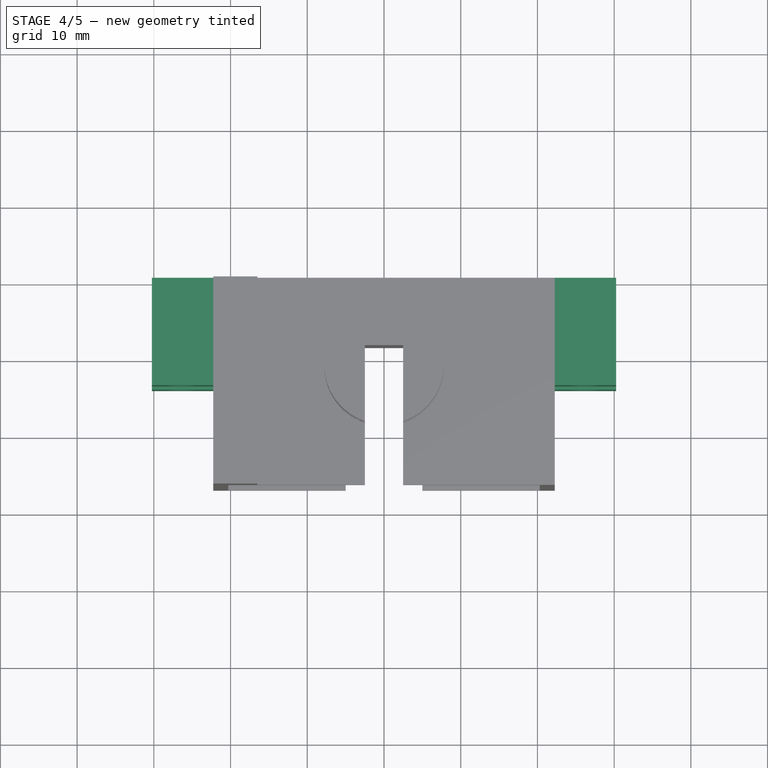
[diagram: stage 4 of 5 — top view after this stage's code; geometry added in this stage tinted green]
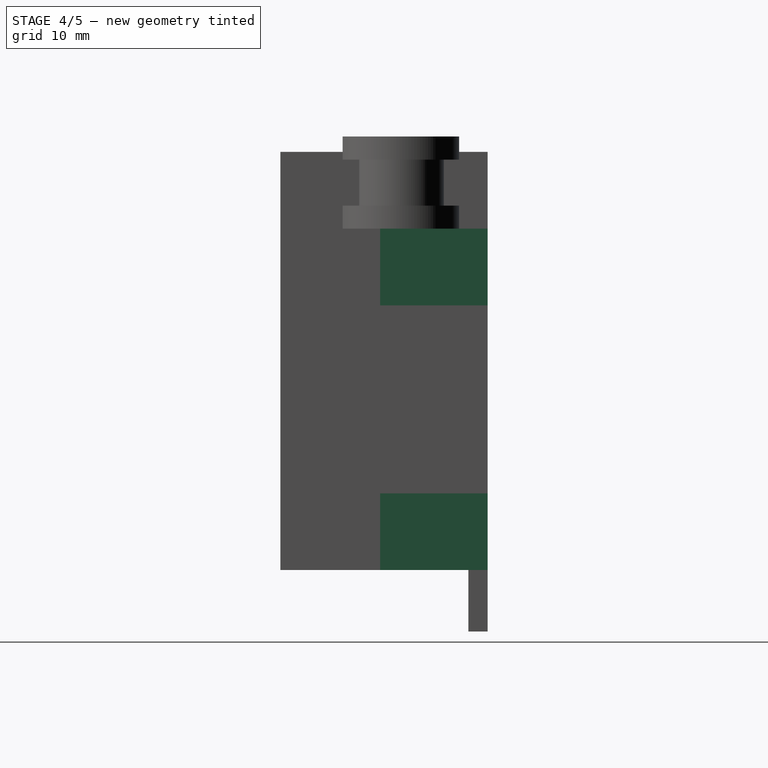
[diagram: stage 4 of 5 — right view after this stage's code; geometry added in this stage tinted green]
FEATURE [PartDesign::Fillet] Fillet
  AddSubType = 0
  Base = -> Pocket007 [Edge149,Edge70]
  BaseFeature = -> Pocket007
  InvalidShape = false
  NewSolid = false
  Placement = pos=(0,0,0) rot=(1,0,0;1.5708rad)
  Radius = 1
  SupportTransform = false
  Suppress = false
  TreeRank = 0
  UseAllEdges = false
  ValidateShape = true
FEATURE [Sketcher::SketchObject] Sketch014
  ArcFitTolerance = 0
  AttachmentSupport = -> [Fillet]
  ExternalBSplineMaxDegree = 0
  ExternalBSplineTolerance = 0
  ExternalGeometry = -> [Fillet]
  FullyConstrained = true
  InternalTolerance = 1e-06
  InvalidShape = false
  MakeInternals = false
  MapMode = 5
  Placement = pos=(0,0,0) rot=(-1,0,0;1.5708rad)
  Support = -> [Fillet]
  TreeRank = 0
  ValidateShape = false
  sketch-geometry (44):
    g0: LineSegment StartX=22.25 StartY=-44.5 StartZ=0 EndX=30.25 EndY=-44.5 EndZ=0
    g1: LineSegment StartX=30.25 StartY=-44.5 StartZ=0 EndX=30.25 EndY=-34.5 EndZ=0
    g2: LineSegment StartX=30.25 StartY=-34.5 StartZ=0 EndX=22.25 EndY=-34.5 EndZ=0
    g3: LineSegment StartX=22.25 StartY=-34.5 StartZ=0 EndX=22.25 EndY=-44.5 EndZ=0
    g4: LineSegment StartX=22.25 StartY=0 StartZ=0 EndX=30.25 EndY=0 EndZ=0
    g5: LineSegment StartX=30.25 StartY=0 StartZ=0 EndX=30.25 EndY=-10 EndZ=0
    g6: LineSegment StartX=30.25 StartY=-10 StartZ=0 EndX=22.25 EndY=-10 EndZ=0
    g7: LineSegment StartX=22.25 StartY=-10 StartZ=0 EndX=22.25 EndY=0 EndZ=0
    g8: LineSegment StartX=-22.25 StartY=0 StartZ=0 EndX=-30.25 EndY=0 EndZ=0
    g9: LineSegment StartX=-30.25 StartY=0 StartZ=0 EndX=-30.25 EndY=-10 EndZ=0
    g10: LineSegment StartX=-30.25 StartY=-10 StartZ=0 EndX=-22.25 EndY=-10 EndZ=0
    g11: LineSegment StartX=-22.25 StartY=-10 StartZ=0 EndX=-22.25 EndY=0 EndZ=0
    g12: LineSegment StartX=-22.25 StartY=-44.5 StartZ=0 EndX=-30.25 EndY=-44.5 EndZ=0
    g13: LineSegment StartX=-30.25 StartY=-44.5 StartZ=0 EndX=-30.25 EndY=-34.5 EndZ=0
    g14: LineSegment StartX=-30.25 StartY=-34.5 StartZ=0 EndX=-22.25 EndY=-34.5 EndZ=0
    g15: LineSegment StartX=-22.25 StartY=-34.5 StartZ=0 EndX=-22.25 EndY=-44.5 EndZ=0
    g16: LineSegment StartX=23.25 StartY=-6.73205 StartZ=0 EndX=26.25 EndY=-8.4641 EndZ=0
    g17: LineSegment StartX=26.25 StartY=-8.4641 StartZ=0 EndX=29.25 EndY=-6.73205 EndZ=0
    g18: LineSegment StartX=29.25 StartY=-6.73205 StartZ=0 EndX=29.25 EndY=-3.26795 EndZ=0
    g19: LineSegment StartX=29.25 StartY=-3.26795 StartZ=0 EndX=26.25 EndY=-1.5359 EndZ=0
    g20: LineSegment StartX=26.25 StartY=-1.5359 StartZ=0 EndX=23.25 EndY=-3.26795 EndZ=0
    g21: LineSegment StartX=23.25 StartY=-3.26795 StartZ=0 EndX=23.25 EndY=-6.73205 EndZ=0
    g22: Circle [constr] CenterX=26.25 CenterY=-5 CenterZ=0 NormalX=0 NormalY=0 NormalZ=1 AngleXU=0 Radius=3.4641
    g23: LineSegment StartX=26.25 StartY=-36.0359 StartZ=0 EndX=23.25 EndY=-37.7679 EndZ=0
    g24: LineSegment StartX=23.25 StartY=-37.7679 StartZ=0 EndX=23.25 EndY=-41.2321 EndZ=0
    g25: LineSegment StartX=23.25 StartY=-41.2321 StartZ=0 EndX=26.25 EndY=-42.9641 EndZ=0
    g26: LineSegment StartX=26.25 StartY=-42.9641 StartZ=0 EndX=29.25 EndY=-41.2321 EndZ=0
    g27: LineSegment StartX=29.25 StartY=-41.2321 StartZ=0 EndX=29.25 EndY=-37.7679 EndZ=0
    g28: LineSegment StartX=29.25 StartY=-37.7679 StartZ=0 EndX=26.25 EndY=-36.0359 EndZ=0
    g29: Circle [constr] CenterX=26.25 CenterY=-39.5 CenterZ=0 NormalX=0 NormalY=0 NormalZ=1 AngleXU=0 Radius=3.4641
    g30: LineSegment StartX=-26.25 StartY=-42.9641 StartZ=0 EndX=-23.25 EndY=-41.2321 EndZ=0
    g31: LineSegment StartX=-23.25 StartY=-41.2321 StartZ=0 EndX=-23.25 EndY=-37.7679 EndZ=0
    g32: LineSegment StartX=-23.25 StartY=-37.7679 StartZ=0 EndX=-26.25 EndY=-36.0359 EndZ=0
    g33: LineSegment StartX=-26.25 StartY=-36.0359 StartZ=0 EndX=-29.25 EndY=-37.7679 EndZ=0
    g34: LineSegment StartX=-29.25 StartY=-37.7679 StartZ=0 EndX=-29.25 EndY=-41.2321 EndZ=0
    g35: LineSegment StartX=-29.25 StartY=-41.2321 StartZ=0 EndX=-26.25 EndY=-42.9641 EndZ=0
    g36: Circle [constr] CenterX=-26.25 CenterY=-39.5 CenterZ=0 NormalX=0 NormalY=0 NormalZ=1 AngleXU=0 Radius=3.4641
    g37: LineSegment StartX=-26.25 StartY=-8.4641 StartZ=0 EndX=-23.25 EndY=-6.73205 EndZ=0
    g38: LineSegment StartX=-23.25 StartY=-6.73205 StartZ=0 EndX=-23.25 EndY=-3.26795 EndZ=0
    g39: LineSegment StartX=-23.25 StartY=-3.26795 StartZ=0 EndX=-26.25 EndY=-1.5359 EndZ=0
    g40: LineSegment StartX=-26.25 StartY=-1.5359 StartZ=0 EndX=-29.25 EndY=-3.26795 EndZ=0
    g41: LineSegment StartX=-29.25 StartY=-3.26795 StartZ=0 EndX=-29.25 EndY=-6.73205 EndZ=0
    g42: LineSegment StartX=-29.25 StartY=-6.73205 StartZ=0 EndX=-26.25 EndY=-8.4641 EndZ=0
    g43: Circle [constr] CenterX=-26.25 CenterY=-5 CenterZ=0 NormalX=0 NormalY=0 NormalZ=1 AngleXU=0 Radius=3.4641
  constraints (108):
    c: Coincident(g0,g1)
    c: Coincident(g1,g2)
    c: Coincident(g2,g3)
    c: Coincident(g3,g0)
    c: Horizontal(g0)
    c: Horizontal(g2)
    c: Vertical(g1)
    c: Vertical(g3)
    c: Coincident(g0,g-3)
    c: Coincident(g4,g5)
    c: Coincident(g5,g6)
    c: Coincident(g6,g7)
    c: Coincident(g7,g4)
    c: Horizontal(g4)
    c: Horizontal(g6)
    c: Vertical(g5)
    c: Vertical(g7)
    c: Coincident(g4,g-3)
    c: Coincident(g8,g9)
    c: Coincident(g9,g10)
    c: Coincident(g10,g11)
    c: Coincident(g11,g8)
    c: Horizontal(g8)
    c: Horizontal(g10)
    c: Vertical(g9)
    c: Vertical(g11)
    c: Coincident(g8,g-4)
    c: Coincident(g12,g13)
    c: Coincident(g13,g14)
    c: Coincident(g14,g15)
    c: Coincident(g15,g12)
    c: Horizontal(g12)
    c: Horizontal(g14)
    c: Vertical(g13)
    c: Vertical(g15)
    c: Coincident(g12,g-4)
    c: Equal(g13,g1)
    c: Equal(g1,g5)
    c: Equal(g5,g9)
    c: Equal(g10,g14)
    c: Equal(g14,g2)
    c: Equal(g2,g6)
    c: DistanceY(g5,g5) = 10
    c: DistanceX(g6,g6) = 8
    c: Coincident(g16,g17)
    c: Coincident(g17,g18)
    c: Coincident(g18,g19)
    c: Coincident(g19,g20)
    c: Coincident(g20,g21)
    c: Coincident(g21,g16)
    c: Equal(g16, g17-g21) x5
    c: PointOnObject(g16,g22)
    c: PointOnObject(g17,g22)
    c: PointOnObject(g18,g22)
    c: PointOnObject(g19,g22)
    c: PointOnObject(g20,g22)
    c: PointOnObject(g21,g22)
    c: Coincident(g23,g24)
    c: Coincident(g24,g25)
    c: Coincident(g25,g26)
    c: Coincident(g26,g27)
    c: Coincident(g27,g28)
    c: Coincident(g28,g23)
    c: Equal(g23, g24-g28) x5
    c: PointOnObject(g23,g29)
    c: PointOnObject(g24,g29)
    c: PointOnObject(g25,g29)
    c: PointOnObject(g26,g29)
    c: PointOnObject(g27,g29)
    c: PointOnObject(g28,g29)
    c: Coincident(g30,g31)
    c: Coincident(g31,g32)
    c: Coincident(g32,g33)
    c: Coincident(g33,g34)
    c: Coincident(g34,g35)
    c: Coincident(g35,g30)
    c: Equal(g30, g31-g35) x5
    c: PointOnObject(g30,g36)
    c: PointOnObject(g31,g36)
    c: PointOnObject(g32,g36)
    c: PointOnObject(g33,g36)
    c: PointOnObject(g34,g36)
    c: PointOnObject(g35,g36)
    c: Coincident(g37,g38)
    c: Coincident(g38,g39)
    c: Coincident(g39,g40)
    c: Coincident(g40,g41)
    c: Coincident(g41,g42)
    c: Coincident(g42,g37)
    c: Equal(g37, g38-g42) x5
    c: PointOnObject(g37,g43)
    c: PointOnObject(g38,g43)
    c: PointOnObject(g39,g43)
    c: PointOnObject(g40,g43)
    c: PointOnObject(g41,g43)
    c: PointOnObject(g42,g43)
    c: Symmetric(g9,g8,g43)
    c: Symmetric(g14,g12,g36)
    c: Symmetric(g0,g1,g29)
    c: Symmetric(g6,g4,g22)
    c: Vertical(g19,g22)
    c: Vertical(g23,g29)
    c: Vertical(g36,g32)
    c: Vertical(g43,g39)
    c: Equal(g39,g20)
    c: Equal(g20,g23)
    c: Equal(g23,g32)
    c: DistanceX(g20,g18) = 6
FEATURE [PartDesign::Pad] Pad005
  AddSubType = 0
  AutoTaperInnerAngle = true
  BaseFeature = -> Fillet
  CheckUpToFaceLimits = true
  ClaimChildren = false
  Direction = (0,1,2e-16)
  Fit = 0
  FitJoin = 0
  InnerFit = 0
  InnerFitJoin = 0
  InvalidShape = false
  Length = 10
  Length2 = 10
  NewSolid = false
  Placement = pos=(0,0,0) rot=(1,0,0;1.5708rad)
  Profile = -> Sketch014
  ReferenceAxis = -> Sketch014 [N_Axis]
  Reversed = true
  Suppress = false
  TaperInnerAngle = 0
  TaperInnerAngleRev = 0
  TreeRank = 0
  Type = 0
  ValidateShape = true
  _ProfileBasedVersion = 0
FEATURE [Sketcher::SketchObject] Sketch015
  ArcFitTolerance = 0
  AttachmentSupport = -> [Pad005]
  ExternalBSplineMaxDegree = 0
  ExternalBSplineTolerance = 0
  ExternalGeometry = -> [Pad005]
  FullyConstrained = true
  InternalTolerance = 1e-06
  InvalidShape = false
  MakeInternals = false
  MapMode = 5
  Placement = pos=(0,-10,-1.1e-15) rot=(1,0,0;1.5708rad)
  Support = -> [Pad005]
  TreeRank = 0
  ValidateShape = false
  sketch-geometry (20):
    g0: Circle CenterX=-26.25 CenterY=39.5 CenterZ=0 NormalX=0 NormalY=0 NormalZ=1 AngleXU=0 Radius=2
    g1: Circle CenterX=26.25 CenterY=39.5 CenterZ=0 NormalX=0 NormalY=0 NormalZ=1 AngleXU=0 Radius=2
    g2: Circle CenterX=26.25 CenterY=5 CenterZ=0 NormalX=0 NormalY=0 NormalZ=1 AngleXU=0 Radius=2
    g3: Circle CenterX=-26.25 CenterY=5 CenterZ=0 NormalX=0 NormalY=0 NormalZ=1 AngleXU=0 Radius=2
    g4: LineSegment StartX=-30.25 StartY=44.5 StartZ=0 EndX=-22.25 EndY=44.5 EndZ=0
    g5: LineSegment StartX=-22.25 StartY=44.5 StartZ=0 EndX=-22.25 EndY=34.5 EndZ=0
    g6: LineSegment StartX=-22.25 StartY=34.5 StartZ=0 EndX=-30.25 EndY=34.5 EndZ=0
    g7: LineSegment StartX=-30.25 StartY=34.5 StartZ=0 EndX=-30.25 EndY=44.5 EndZ=0
    g8: LineSegment StartX=-30.25 StartY=10 StartZ=0 EndX=-22.25 EndY=10 EndZ=0
    g9: LineSegment StartX=-22.25 StartY=10 StartZ=0 EndX=-22.25 EndY=7.39675e-11 EndZ=0
    g10: LineSegment StartX=-22.25 StartY=7.39675e-11 StartZ=0 EndX=-30.25 EndY=7.39675e-11 EndZ=0
    g11: LineSegment StartX=-30.25 StartY=7.39675e-11 StartZ=0 EndX=-30.25 EndY=10 EndZ=0
    g12: LineSegment StartX=22.25 StartY=10 StartZ=0 EndX=30.25 EndY=10 EndZ=0
    g13: LineSegment StartX=30.25 StartY=10 StartZ=0 EndX=30.25 EndY=0 EndZ=0
    g14: LineSegment StartX=30.25 StartY=0 StartZ=0 EndX=22.25 EndY=0 EndZ=0
    g15: LineSegment StartX=22.25 StartY=0 StartZ=0 EndX=22.25 EndY=10 EndZ=0
    g16: LineSegment StartX=30.25 StartY=34.5 StartZ=0 EndX=22.25 EndY=34.5 EndZ=0
    g17: LineSegment StartX=22.25 StartY=34.5 StartZ=0 EndX=22.25 EndY=44.5 EndZ=0
    g18: LineSegment StartX=22.25 StartY=44.5 StartZ=0 EndX=30.25 EndY=44.5 EndZ=0
    g19: LineSegment StartX=30.25 StartY=44.5 StartZ=0 EndX=30.25 EndY=34.5 EndZ=0
  constraints (48):
    c: Symmetric(g-9,g-10,g3)
    c: Symmetric(g-4,g-3,g0)
    c: Symmetric(g-6,g-5,g1)
    c: Symmetric(g-7,g-8,g2)
    c: Equal(g2,g1)
    c: Equal(g1,g0)
    c: Equal(g0,g3)
    c: Diameter(g0) = 4
    c: Coincident(g4,g5)
    c: Coincident(g5,g6)
    c: Coincident(g6,g7)
    c: Coincident(g7,g4)
    c: Horizontal(g4)
    c: Horizontal(g6)
    c: Vertical(g5)
    c: Vertical(g7)
    c: Coincident(g4,g-3)
    c: Coincident(g5,g-4)
    c: Coincident(g8,g9)
    c: Coincident(g9,g10)
    c: Coincident(g10,g11)
    c: Coincident(g11,g8)
    c: Horizontal(g8)
    c: Horizontal(g10)
    c: Vertical(g9)
    c: Vertical(g11)
    c: Coincident(g8,g-9)
    c: Coincident(g9,g-10)
    c: Coincident(g12,g13)
    c: Coincident(g13,g14)
    c: Coincident(g14,g15)
    c: Coincident(g15,g12)
    c: Horizontal(g12)
    c: Horizontal(g14)
    c: Vertical(g13)
    c: Vertical(g15)
    c: Coincident(g12,g-7)
    c: Coincident(g13,g-8)
    c: Coincident(g16,g17)
    c: Coincident(g17,g18)
    c: Coincident(g18,g19)
    c: Coincident(g19,g16)
    c: Horizontal(g16)
    c: Horizontal(g18)
    c: Vertical(g17)
    c: Vertical(g19)
    c: Coincident(g16,g-6)
    c: Coincident(g17,g-5)
FEATURE [PartDesign::Pad] Pad006
  AddSubType = 0
  AutoTaperInnerAngle = true
  BaseFeature = -> Pad005
  CheckUpToFaceLimits = true
  ClaimChildren = false
  Direction = (0,-1,-2e-16)
  Fit = 0
  FitJoin = 0
  InnerFit = 0
  InnerFitJoin = 0
  InvalidShape = false
  Length = 4
  Length2 = 10
  NewSolid = false
  Placement = pos=(0,0,0) rot=(1,0,0;1.5708rad)
  Profile = -> Sketch015
  ReferenceAxis = -> Sketch015 [N_Axis]
  Suppress = false
  TaperInnerAngle = 0
  TaperInnerAngleRev = 0
  TreeRank = 0
  Type = 0
  ValidateShape = true
  _ProfileBasedVersion = 0
FEATURE [Sketcher::SketchObject] Sketch016
  ArcFitTolerance = 0
  AttachmentSupport = -> [Pad006]
  ExternalBSplineMaxDegree = 0
  ExternalBSplineTolerance = 0
  ExternalGeometry = -> [Pad006]
  FullyConstrained = true
  InternalTolerance = 1e-06
  InvalidShape = false
  MakeInternals = false
  MapMode = 5
  Placement = pos=(0,0,0) rot=(-1,0,0;1.5708rad)
  Support = -> [Pad006]
  TreeRank = 0
  ValidateShape = false
  sketch-geometry (1):
    g0: Circle CenterX=4 CenterY=-37.5 CenterZ=0 NormalX=0 NormalY=0 NormalZ=1 AngleXU=0 Radius=5
  constraints (3):
    c: DistanceX(g0,g-3) = 3
    c: DistanceY(g-5,g0) = 7
    c: Diameter(g0) = 10
FEATURE [PartDesign::Pocket] Pocket008
  AddSubType = 1
  AutoTaperInnerAngle = true
  BaseFeature = -> Pad006
  CheckUpToFaceLimits = true
  ClaimChildren = false
  Direction = (0,-1,2e-16)
  Fit = 0
  FitJoin = 0
  InnerFit = 0
  InnerFitJoin = 0
  InvalidShape = false
  Length = 4
  Length2 = 5
  NewSolid = false
  Placement = pos=(0,0,0) rot=(1,0,0;1.5708rad)
  Profile = -> Sketch016
  ReferenceAxis = -> Sketch016 [N_Axis]
  Suppress = false
  TaperInnerAngle = 0
  TaperInnerAngleRev = 0
  TreeRank = 0
  Type = 0
  ValidateShape = true
  _ProfileBasedVersion = 0
  _Version = 0
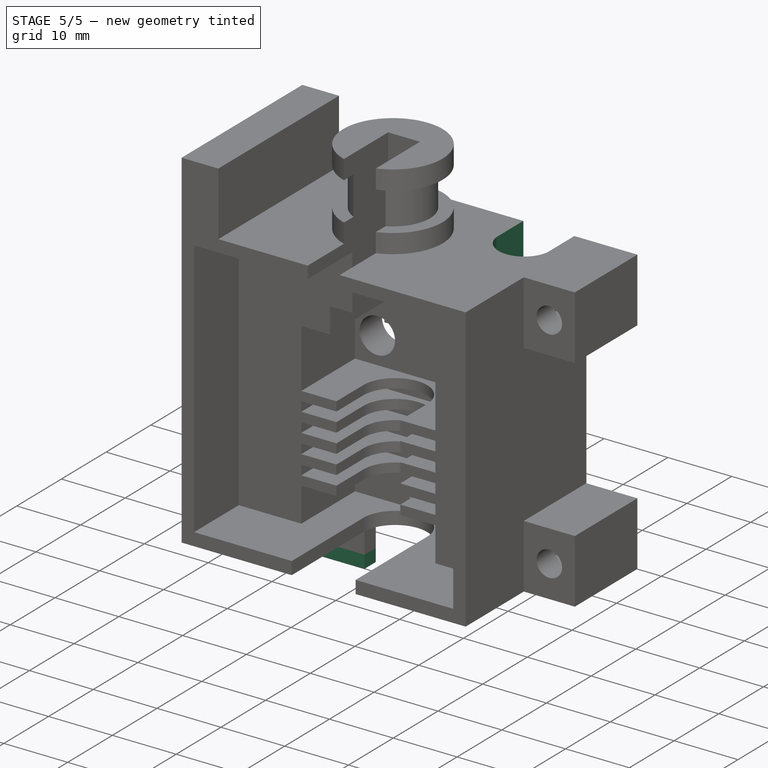
[diagram: stage 5 of 5 — iso view after this stage's code; geometry added in this stage tinted green]
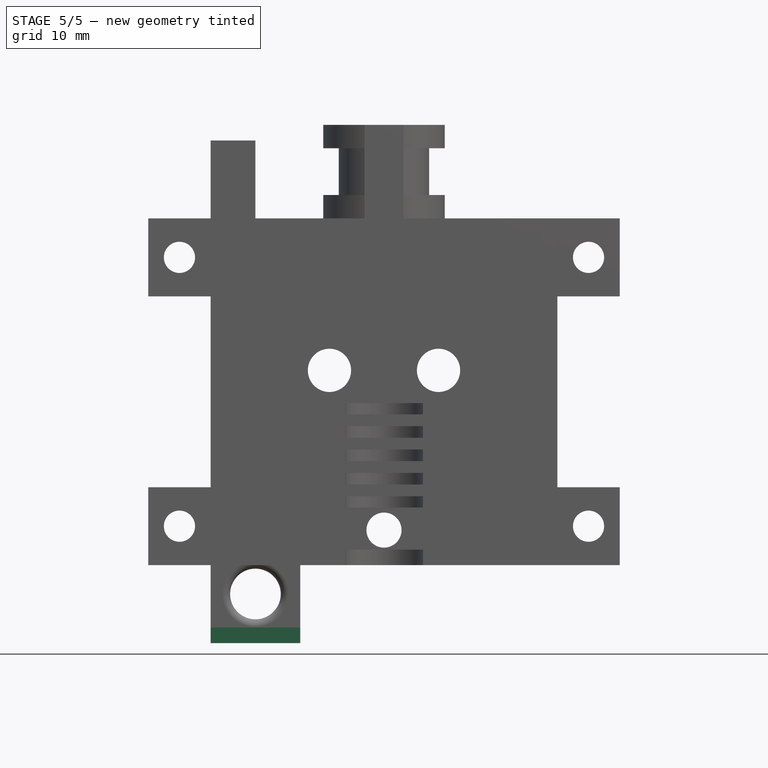
[diagram: stage 5 of 5 — front view after this stage's code; geometry added in this stage tinted green]
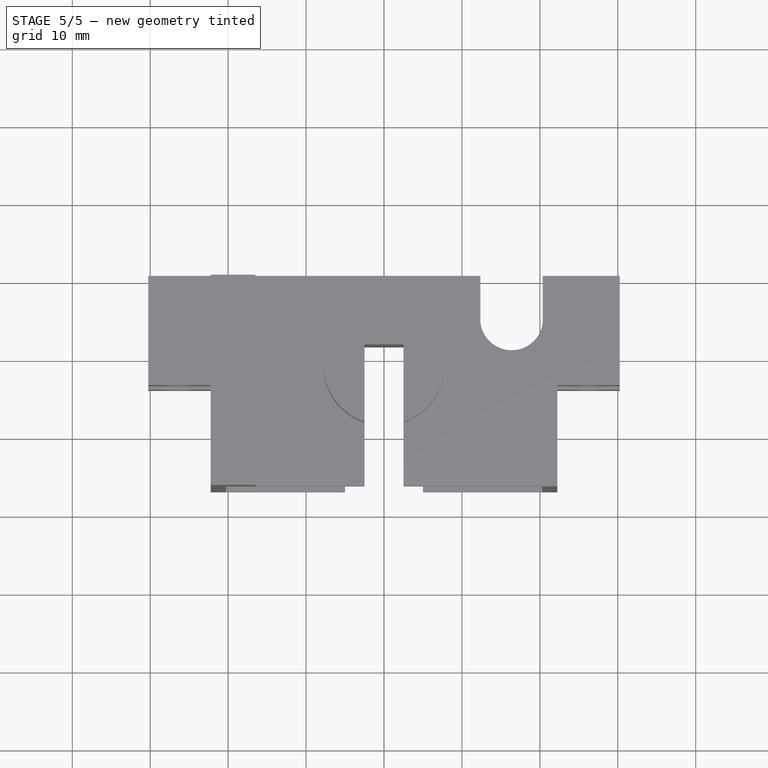
[diagram: stage 5 of 5 — top view after this stage's code; geometry added in this stage tinted green]
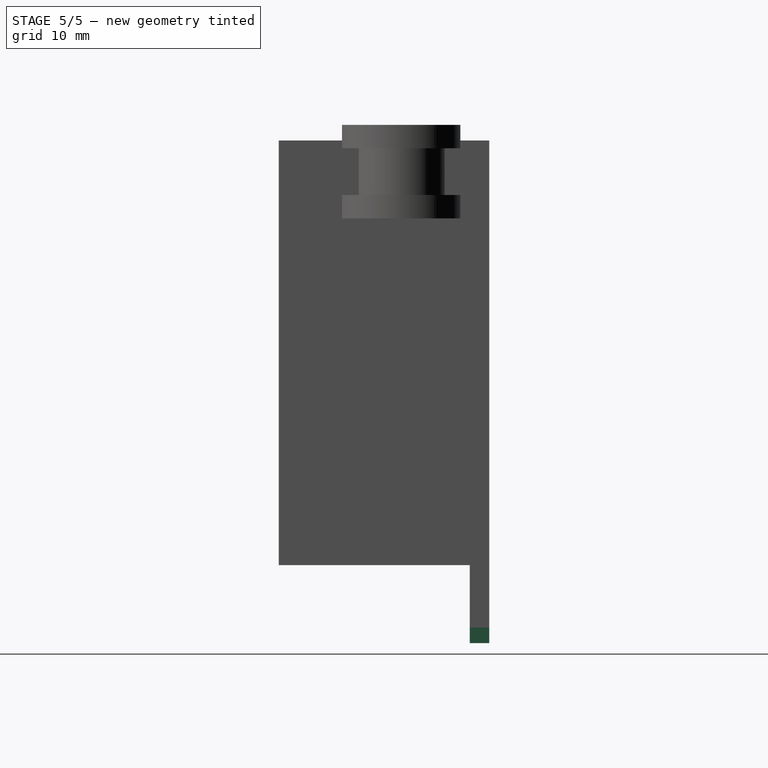
[diagram: stage 5 of 5 — right view after this stage's code; geometry added in this stage tinted green]
FEATURE [PartDesign::Fillet] Fillet001
  AddSubType = 0
  Base = -> Pocket008 [Edge123]
  BaseFeature = -> Pocket008
  InvalidShape = false
  NewSolid = false
  Placement = pos=(0,0,0) rot=(1,0,0;1.5708rad)
  Radius = 3.5
  SupportTransform = false
  Suppress = false
  TreeRank = 0
  UseAllEdges = false
  ValidateShape = true
FEATURE [PartDesign::Fillet] Fillet002
  AddSubType = 0
  Base = -> Fillet001 [Edge3]
  BaseFeature = -> Fillet001
  InvalidShape = false
  NewSolid = false
  Placement = pos=(0,0,0) rot=(1,0,0;1.5708rad)
  Radius = 1
  SupportTransform = false
  Suppress = false
  TreeRank = 0
  UseAllEdges = false
  ValidateShape = true
FEATURE [Sketcher::SketchObject] Sketch017
  ArcFitTolerance = 0
  AttachmentSupport = -> [Fillet002]
  ExternalBSplineMaxDegree = 0
  ExternalBSplineTolerance = 0
  ExternalGeometry = -> [Fillet002]
  FullyConstrained = true
  InternalTolerance = 1e-06
  InvalidShape = false
  MakeInternals = false
  MapMode = 5
  Placement = pos=(0,0,0) rot=(1,0,0;3.14159rad)
  Support = -> [Fillet002]
  TreeRank = 0
  ValidateShape = false
  sketch-geometry (5):
    g0: ArcOfCircle CenterX=16.375 CenterY=5.5 CenterZ=0 NormalX=0 NormalY=0 NormalZ=1 AngleXU=0 Radius=4.03113 StartAngle=0.124355 EndAngle=3.01724
    g1: LineSegment StartX=20.375 StartY=6 StartZ=0 EndX=20.375 EndY=0 EndZ=0
    g2: LineSegment StartX=12.375 StartY=6 StartZ=0 EndX=12.375 EndY=0 EndZ=0
    g3: LineSegment StartX=20.375 StartY=0 StartZ=0 EndX=12.375 EndY=0 EndZ=0
    g4: GeomPoint [constr] X=16.375 Y=0 Z=0
  constraints (13):
    c: Coincident(g1,g0)
    c: Vertical(g1)
    c: Coincident(g2,g0)
    c: Vertical(g2)
    c: Horizontal(g-3,g2)
    c: Coincident(g3,g1)
    c: Coincident(g3,g2)
    c: DistanceX(g3,g3) = 8
    c: Horizontal(g0,g0)
    c: DistanceY(g2,g2) = 6
    c: Symmetric(g3,g3,g4)
    c: Symmetric(g-3,g-3,g4)
    c: DistanceY(g0,g0) = 0.5
FEATURE [PartDesign::Pocket] Pocket009
  AddSubType = 1
  AlongSketchNormal = false
  AutoTaperInnerAngle = true
  BaseFeature = -> Fillet002
  CheckUpToFaceLimits = true
  ClaimChildren = false
  Direction = (0,0,1)
  Fit = 0
  FitJoin = 0
  InnerFit = 0
  InnerFitJoin = 0
  InvalidShape = false
  Length = 5
  Length2 = 5
  NewSolid = false
  Placement = pos=(0,0,0) rot=(1,0,0;1.5708rad)
  Profile = -> Sketch017
  ReferenceAxis = -> Sketch017 [N_Axis]
  Suppress = false
  TaperInnerAngle = 0
  TaperInnerAngleRev = 0
  TreeRank = 0
  Type = 1
  ValidateShape = true
  _ProfileBasedVersion = 0
  _Version = 0
FEATURE [Sketcher::SketchObject] Sketch018
  ArcFitTolerance = 0
  AttachmentSupport = -> [Pocket009]
  ExternalBSplineMaxDegree = 0
  ExternalBSplineTolerance = 0
  ExternalGeometry = -> [Pocket009]
  FullyConstrained = true
  InternalTolerance = 1e-06
  InvalidShape = false
  MakeInternals = false
  MapMode = 5
  Placement = pos=(0,-5.3e-15,-8) rot=(1,0,0;3.14159rad)
  Support = -> [Pocket009]
  TreeRank = 0
  ValidateShape = false
  sketch-geometry (4):
    g0: LineSegment StartX=-22.25 StartY=2.5 StartZ=0 EndX=-10.75 EndY=2.5 EndZ=0
    g1: LineSegment StartX=-10.75 StartY=2.5 StartZ=0 EndX=-10.75 EndY=0 EndZ=0
    g2: LineSegment StartX=-10.75 StartY=0 StartZ=0 EndX=-22.25 EndY=0 EndZ=0
    g3: LineSegment StartX=-22.25 StartY=0 StartZ=0 EndX=-22.25 EndY=2.5 EndZ=0
  constraints (10):
    c: Coincident(g0,g1)
    c: Coincident(g1,g2)
    c: Coincident(g2,g3)
    c: Coincident(g3,g0)
    c: Horizontal(g0)
    c: Horizontal(g2)
    c: Vertical(g1)
    c: Vertical(g3)
    c: Coincident(g0,g-3)
    c: Coincident(g1,g-4)
FEATURE [PartDesign::Pad] Pad007
  AddSubType = 0
  AutoTaperInnerAngle = true
  BaseFeature = -> Pocket009
  CheckUpToFaceLimits = true
  ClaimChildren = false
  Direction = (0,-7e-16,-1)
  Fit = 0
  FitJoin = 0
  InnerFit = 0
  InnerFitJoin = 0
  InvalidShape = false
  Length = 2
  Length2 = 10
  NewSolid = false
  Placement = pos=(0,0,0) rot=(1,0,0;1.5708rad)
  Profile = -> Sketch018
  ReferenceAxis = -> Sketch018 [N_Axis]
  Suppress = false
  TaperInnerAngle = 0
  TaperInnerAngleRev = 0
  TreeRank = 0
  Type = 0
  ValidateShape = true
  _ProfileBasedVersion = 0
FEATURE [PartDesign::Body] Body
  AutoGroupSolids = false
  ClaimAllChildren = false
  ExportMode = 0
  Group = -> [Sketch,Pad,Sketch001,Pad001,Sketch002,Pocket,Sketch003,Pocket001,Sketch004,Pad002,Sketch005,Pocket002,DatumPlane,Sketch006,Revolution,Sketch007,Pad003,Sketch008,Pocket003,Sketch009,Pad004,Sketch012,Pocket006,Sketch013,Pocket007,Fillet,Sketch014,Pad005,Sketch015,Pad006,Sketch016,Pocket008,Fillet001,Fillet002,Sketch017,Pocket009,Sketch018,Pad007]
  InvalidShape = false
  Origin = -> Origin
  Tip = -> Pad007
  TreeRank = 0
  ValidateShape = false
  _ExportChildren = -> [Pad,Pad001,Pocket,Pocket001,Pad002,Pocket002,DatumPlane,Revolution,Pad003,Pocket003,Pad004,Pocket006,Pocket007,Fillet,Pad005,Pad006,Pocket008,Fillet001,Fillet002,Pocket009,Pad007]
  _GroupVersion = 1
FEATURE [App::Part] Part  label="Base"
  ClaimAllChildren = false
  ExportMode = 1
  Group = -> [Body]
  Origin = -> Origin001
  TreeRank = 3
  _ExportChildren = -> [Body]
  _GroupVersion = 1
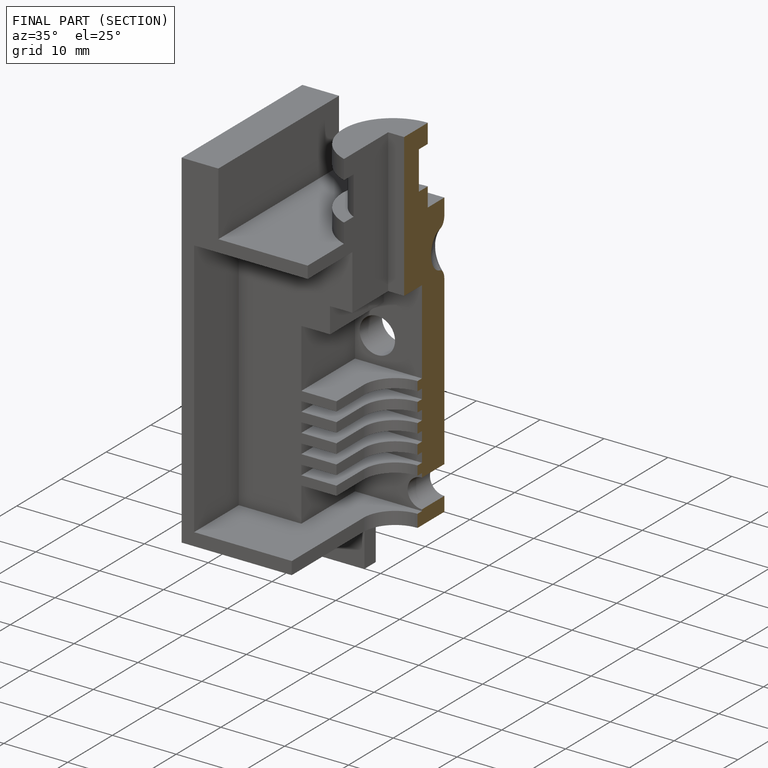
[diagram: finished part — half-section view (interior)]
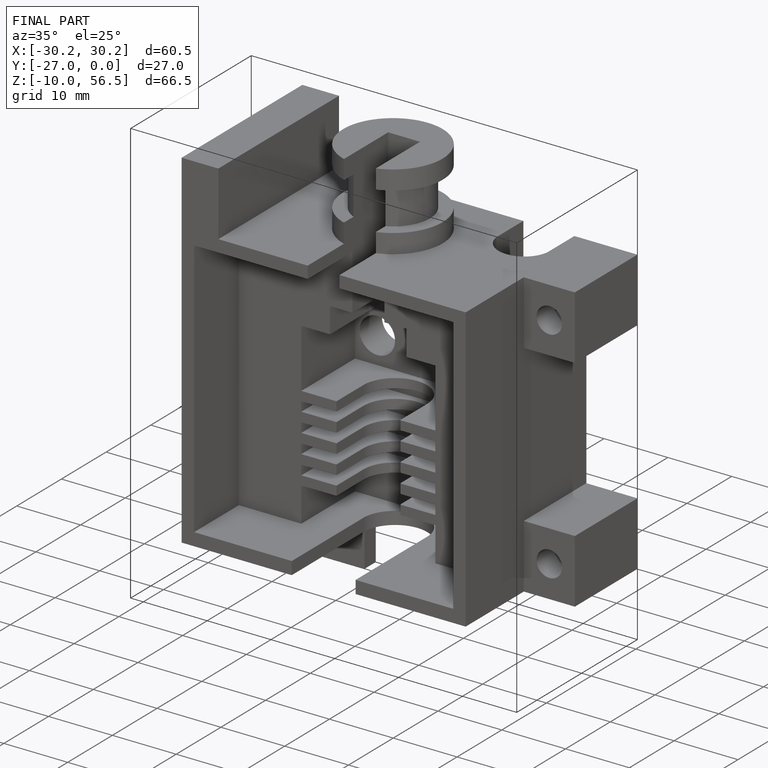
[diagram: finished part — iso view with bounding-box wireframe]
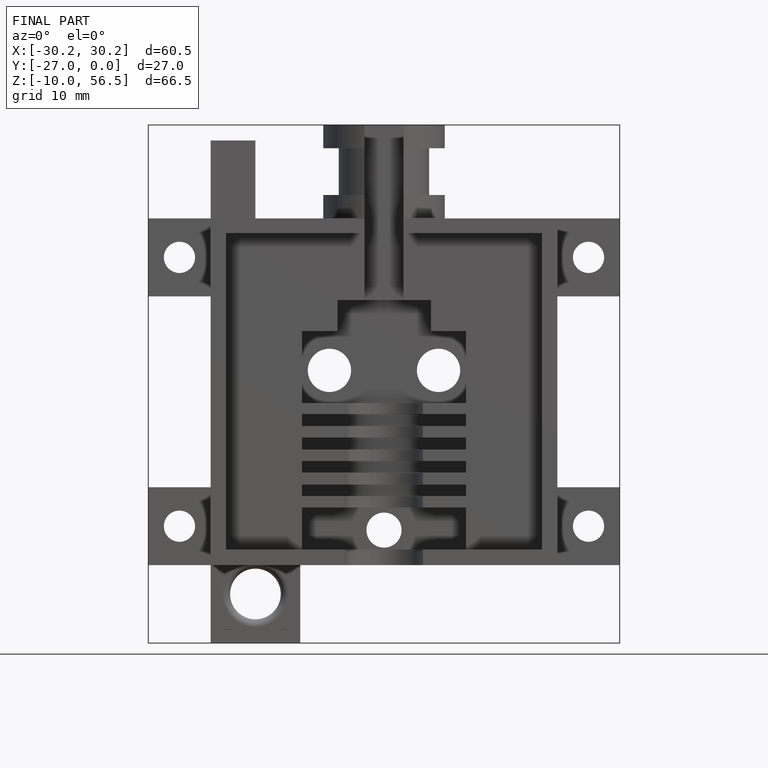
[diagram: finished part — front view with bounding-box wireframe]
